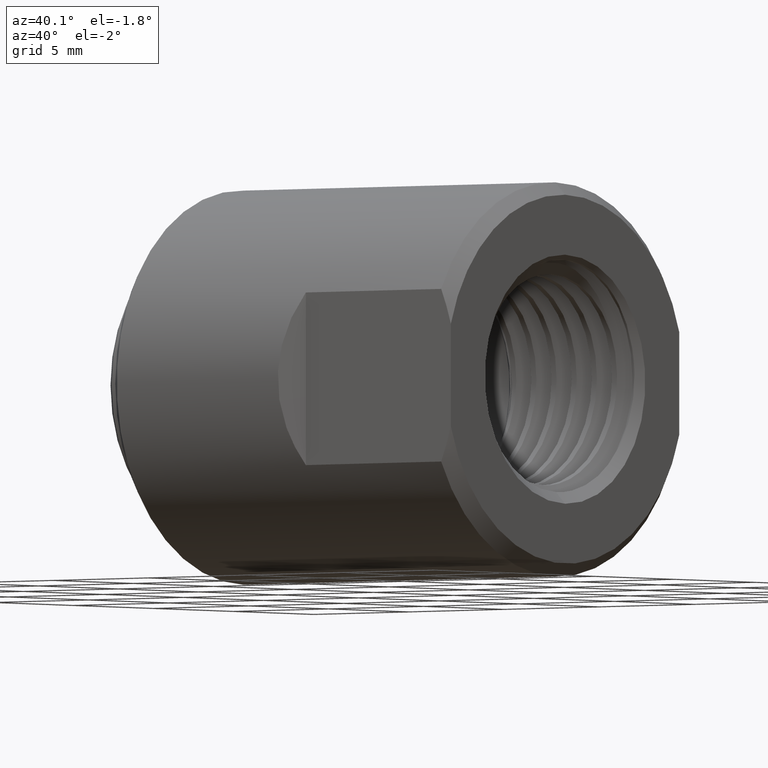
[diagram: clean part render]
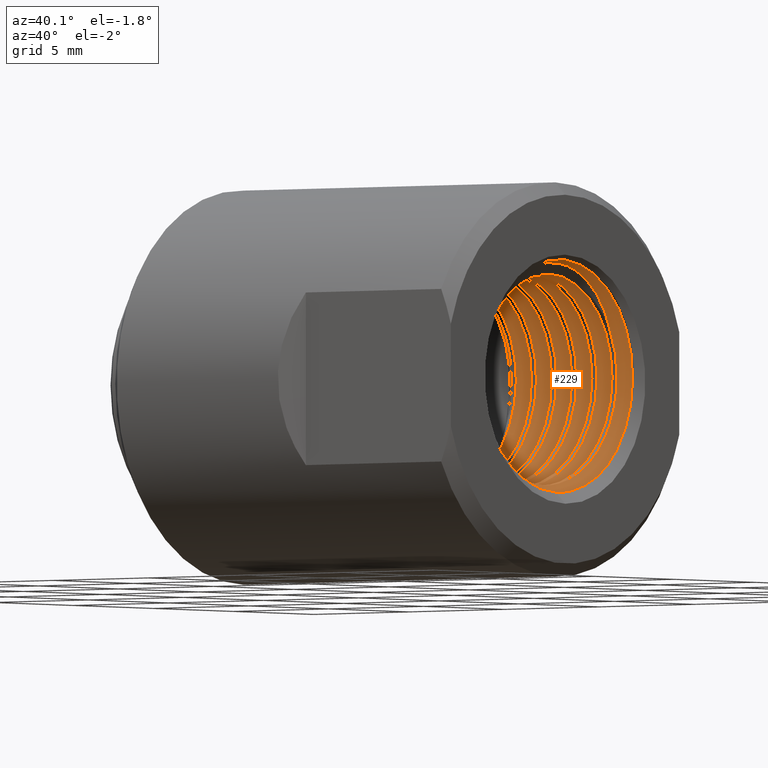
[diagram: same view with one face highlighted and labeled with its STEP entity id]
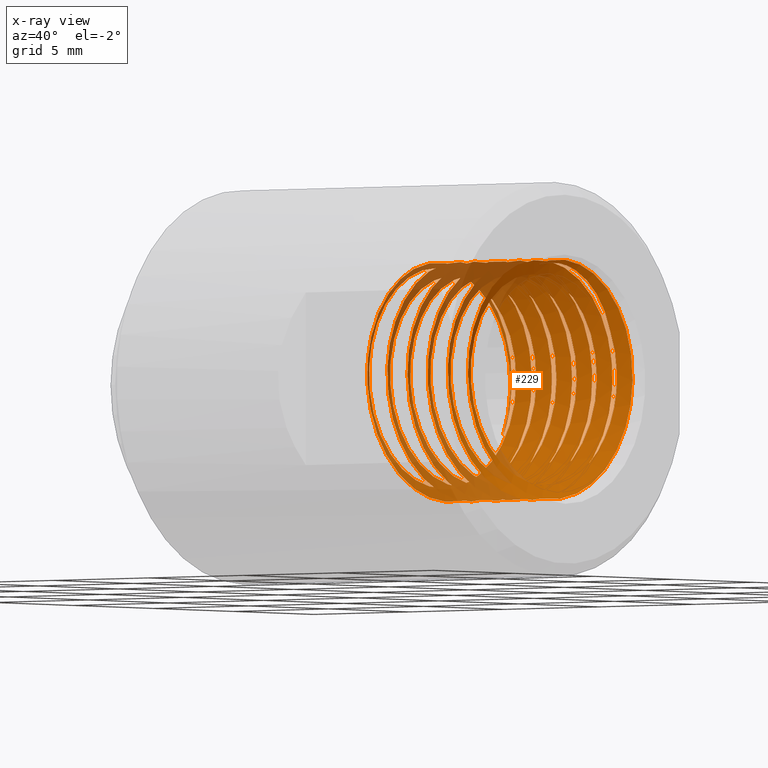
[diagram: x-ray of the same camera — body ghosted, the highlighted face saturated]
A machine part, auxiliary view. The second image highlights one B-rep face of the part: STEP entity #229.
The next image is the same camera in x-ray: the body ghosted, the highlighted face saturated — about 25% of this face is hidden behind the body in this view.
In plain terms, the highlighted face is a freeform B-spline surface patch.
Its self-contained STEP definition (entity closure, byte-faithful):
#10 = CARTESIAN_POINT ( 'NONE',  ( 0.2992500001137994303, 2.047456367324482387E-17, -0.1671875000000000999 ) ) ;
#52 = CARTESIAN_POINT ( 'NONE',  ( 0.4997708333902329270, 0.0000000000000000000, 0.1897402447916667623 ) ) ;
#68 = CARTESIAN_POINT ( 'NONE',  ( 0.2367500001137994303, 0.0000000000000000000, 0.1671875000000000999 ) ) ;
#82 = CARTESIAN_POINT ( 'NONE',  ( 0.3230624420322579238, 0.1755784089061325215, 0.06317381129562710251 ) ) ;
#112 = CARTESIAN_POINT ( 'NONE',  ( 0.5232083333902330935, 0.07859298272069940861, -0.1897402447916667623 ) ) ;
#114 = CARTESIAN_POINT ( 'NONE',  ( 0.4242500001137994303, 2.047456367324482387E-17, -0.1671875000000000999 ) ) ;
#128 = CARTESIAN_POINT ( 'NONE',  ( 0.2888333334471328007, -0.1671875000000000999, -3.071184550986722811E-17 ) ) ;
#153 = CARTESIAN_POINT ( 'NONE',  ( 0.3487291667804661155, 0.1671875000000000999, -0.06925132995925185886 ) ) ;
#173 = CARTESIAN_POINT ( 'NONE',  ( 0.5388333333902329825, 0.07859298272069938085, 0.1897402447916667623 ) ) ;
#188 = CARTESIAN_POINT ( 'NONE',  ( 0.2784166667804661155, 0.0000000000000000000, 0.1671875000000000999 ) ) ;
#202 = CARTESIAN_POINT ( 'NONE',  ( 0.4372708333902329825, 2.323647834535499307E-17, -0.1897402447916667623 ) ) ;
#229 = ADVANCED_FACE ( 'NONE', ( #11634 ), #6758, .T. ) ;
#233 = CARTESIAN_POINT ( 'NONE',  ( 0.5310208333902329825, 0.1897402447916667623, 1.161823917267749653E-17 ) ) ;
#235 = CARTESIAN_POINT ( 'NONE',  ( 0.4086250001137994303, -0.1182194149796260002, 0.1182194149796259586 ) ) ;
#237 = CARTESIAN_POINT ( 'NONE',  ( 0.3695625001137994303, -0.1671875000000000444, 0.06925132995925192825 ) ) ;
#264 = CARTESIAN_POINT ( 'NONE',  ( 0.3331041667235663528, 0.0000000000000000000, 0.1897402447916667623 ) ) ;
#291 = CARTESIAN_POINT ( 'NONE',  ( 0.4294583333902330380, -0.1897402447916667345, -0.07859298272069949187 ) ) ;
#292 = CARTESIAN_POINT ( 'NONE',  ( 0.4346666667804661155, 0.1671875000000000999, 1.023728183662241194E-17 ) ) ;
#304 = VERTEX_POINT ( 'NONE', #10035 ) ;
#326 = CARTESIAN_POINT ( 'NONE',  ( 0.4086250000568996676, 0.1897402447916667623, 0.07859298272069938085 ) ) ;
#355 = CARTESIAN_POINT ( 'NONE',  ( 0.3930000000568996121, -0.07859298272069935309, -0.1897402447916668455 ) ) ;
#380 = VERTEX_POINT ( 'NONE', #6422 ) ;
#385 = CARTESIAN_POINT ( 'NONE',  ( 0.5336250001137994303, -0.1182194149796260002, 0.1182194149796259586 ) ) ;
#419 = CARTESIAN_POINT ( 'NONE',  ( 0.3617500000568996676, 0.1897402447916667623, -0.07859298272069936697 ) ) ;
#455 = CARTESIAN_POINT ( 'NONE',  ( 0.5440416667804660600, -0.1182194149796259725, -0.1182194149796260002 ) ) ;
#473 = CARTESIAN_POINT ( 'NONE',  ( 0.4945625001137994858, -0.1671875000000000444, 0.06925132995925192825 ) ) ;
#489 = CARTESIAN_POINT ( 'NONE',  ( 0.4190416667235664083, -0.07859298272069950575, 0.1897402447916667345 ) ) ;
#490 = CARTESIAN_POINT ( 'NONE',  ( 0.4450833334471326896, 0.0000000000000000000, 0.1671875000000000999 ) ) ;
#520 = CARTESIAN_POINT ( 'NONE',  ( 0.3018541667235663528, -0.1897402447916667623, -3.485471751803248806E-17 ) ) ;
#540 = CARTESIAN_POINT ( 'NONE',  ( 0.4502916667804661155, -0.1182194149796260002, 0.1182194149796259586 ) ) ;
#559 = CARTESIAN_POINT ( 'NONE',  ( 0.3956041667235663528, 2.323647834535499307E-17, -0.1897402447916667623 ) ) ;
#588 = CARTESIAN_POINT ( 'NONE',  ( 0.6013333334471326896, 0.1671875000000000999, 1.023728183662241194E-17 ) ) ;
#604 = CARTESIAN_POINT ( 'NONE',  ( 0.3591458334471327452, 0.06925132995925187274, 0.1671875000000000999 ) ) ;
#606 = CARTESIAN_POINT ( 'NONE',  ( 0.3391358523092131150, -0.08798021306902083227, -0.1463319939339580156 ) ) ;
#616 = CARTESIAN_POINT ( 'NONE',  ( 0.5284166667804660600, 0.0000000000000000000, 0.1671875000000000999 ) ) ;
#621 = CARTESIAN_POINT ( 'NONE',  ( 0.5284166667235663528, 0.1897402447916667623, -0.07859298272069936697 ) ) ;
#625 = EDGE_CURVE ( 'NONE', #9468, #9767, #7239, .T. ) ;
#649 = VERTEX_POINT ( 'NONE', #1453 ) ;
#654 = CARTESIAN_POINT ( 'NONE',  ( 0.2784166667235663528, 0.1897402447916667623, -0.07859298272069936697 ) ) ;
#662 = CARTESIAN_POINT ( 'NONE',  ( 0.4034166667804661155, 0.0000000000000000000, 0.1671875000000000999 ) ) ;
#671 = CARTESIAN_POINT ( 'NONE',  ( 0.4659166667804660600, 2.047456367324482387E-17, -0.1671875000000000999 ) ) ;
#729 = CARTESIAN_POINT ( 'NONE',  ( 0.4398750001137994303, 0.1182194149796259863, 0.1182194149796259863 ) ) ;
#747 = CARTESIAN_POINT ( 'NONE',  ( 0.5805000000568997232, 0.07859298272069938085, 0.1897402447916667623 ) ) ;
#751 =( BOUNDED_CURVE ( )  B_SPLINE_CURVE ( 2, ( #616, #2654, #7352, #7417, #11248, #11313, #6402, #8498, #10473 ),
 .UNSPECIFIED., .F., .F. ) 
 B_SPLINE_CURVE_WITH_KNOTS ( ( 3, 2, 2, 2, 3 ),
 ( 0.2222222222222221544, 0.2361111111111110494, 0.2499999999999999722, 0.2638888888888888951, 0.2777777777777777901 ),
 .UNSPECIFIED. ) 
 CURVE ( )  GEOMETRIC_REPRESENTATION_ITEM ( )  RATIONAL_B_SPLINE_CURVE ( ( 1.000000000000000222, 0.9238795325112864054, 1.000000000000000000, 0.9238795325112867385, 1.000000000000000000, 0.9238795325112867385, 1.000000000000000000, 0.9238795325112867385, 1.000000000000000000 ) ) 
 REPRESENTATION_ITEM ( '' )  );
#808 = CARTESIAN_POINT ( 'NONE',  ( 0.4971666667235663528, 0.07859298272069938085, 0.1897402447916667623 ) ) ;
#810 = CARTESIAN_POINT ( 'NONE',  ( 0.5845696933046855559, -0.05742385723796969432, 0.1801833943573952768 ) ) ;
#857 = CARTESIAN_POINT ( 'NONE',  ( 0.3383043417122014729, -0.1158320986056485535, -0.1265852127559053686 ) ) ;
#902 = VERTEX_POINT ( 'NONE', #9046 ) ;
#905 = CARTESIAN_POINT ( 'NONE',  ( 0.3197597552083332184, 0.1716462196773733961, -0.08086368631263661511 ) ) ;
#951 = CARTESIAN_POINT ( 'NONE',  ( 0.5831041667235663528, 0.0000000000000000000, 0.1897402447916667623 ) ) ;
#965 = CARTESIAN_POINT ( 'NONE',  ( 0.5284166667804660600, 0.0000000000000000000, 0.1671875000000000999 ) ) ;
#969 = CARTESIAN_POINT ( 'NONE',  ( 0.3044583334471327452, 0.1182194149796259863, -0.1182194149796259725 ) ) ;
#982 = CARTESIAN_POINT ( 'NONE',  ( 0.3256976135724864441, 0.1032374188694688416, 0.1522674508890443923 ) ) ;
#1010 = CARTESIAN_POINT ( 'NONE',  ( 0.5023750000568997232, -0.07859298272069950575, 0.1897402447916667345 ) ) ;
#1026 = CARTESIAN_POINT ( 'NONE',  ( 0.5518541667804660600, 0.06925132995925169233, -0.1671875000000003220 ) ) ;
#1045 = CARTESIAN_POINT ( 'NONE',  ( 0.5726875000568996121, 0.1897402447916667623, 1.161823917267749653E-17 ) ) ;
#1072 = CARTESIAN_POINT ( 'NONE',  ( 0.5466458333902329825, -0.1341666137561830785, 0.1341666137561830230 ) ) ;
#1092 = CARTESIAN_POINT ( 'NONE',  ( 0.2914375001137994303, -0.1671875000000000444, -0.06925132995925196988 ) ) ;
#1106 = CARTESIAN_POINT ( 'NONE',  ( 0.3435208333902330380, -0.1897402447916667623, -3.485471751803248806E-17 ) ) ;
#1133 = CARTESIAN_POINT ( 'NONE',  ( 0.5752916667235663528, 0.1897402447916667623, 0.07859298272069938085 ) ) ;
#1168 = CARTESIAN_POINT ( 'NONE',  ( 0.4581041667235663528, 0.0000000000000000000, 0.1897402447916667623 ) ) ;
#1178 = CARTESIAN_POINT ( 'NONE',  ( 0.4971666667804660600, -0.1671875000000000999, -3.071184550986722811E-17 ) ) ;
#1196 = CARTESIAN_POINT ( 'NONE',  ( 0.5622708333902329825, 2.323647834535499307E-17, -0.1897402447916667623 ) ) ;
#1208 = CARTESIAN_POINT ( 'NONE',  ( 0.2653958334471327452, 0.1671875000000000999, -0.06925132995925185886 ) ) ;
#1224 = CARTESIAN_POINT ( 'NONE',  ( 0.3539375000568996676, 2.323647834535499307E-17, -0.1897402447916667623 ) ) ;
#1259 = CARTESIAN_POINT ( 'NONE',  ( 0.4164375000568996676, 0.0000000000000000000, 0.1897402447916667623 ) ) ;
#1275 = EDGE_CURVE ( 'NONE', #380, #1480, #6831, .T. ) ;
#1305 = CARTESIAN_POINT ( 'NONE',  ( 0.3324960459210342112, -0.1512423767299674593, 0.09267706996523208951 ) ) ;
#1319 = CARTESIAN_POINT ( 'NONE',  ( 0.3461250000568996676, -0.1897402447916667345, -0.07859298272069949187 ) ) ;
#1354 = CARTESIAN_POINT ( 'NONE',  ( 0.2497708333902330102, 0.0000000000000000000, 0.1897402447916667623 ) ) ;
#1358 = CARTESIAN_POINT ( 'NONE',  ( 0.3461250000568996676, -0.1897402447916667068, -0.07859298272069949187 ) ) ;
#1386 = CARTESIAN_POINT ( 'NONE',  ( 0.3226875000568997232, 0.1897402447916667623, 1.161823917267749653E-17 ) ) ;
#1418 = CARTESIAN_POINT ( 'NONE',  ( 0.5258125001137993193, 0.06925132995925187274, 0.1671875000000000999 ) ) ;
#1435 = CARTESIAN_POINT ( 'NONE',  ( 0.4190416667804660600, -0.1182194149796259725, -0.1182194149796260002 ) ) ;
#1452 = CARTESIAN_POINT ( 'NONE',  ( 0.4607083333902329825, -0.07859298272069950575, 0.1897402447916667345 ) ) ;
#1453 = CARTESIAN_POINT ( 'NONE',  ( 0.3414275771982433483, -7.773545401003312226E-13, -0.1680724228017568822 ) ) ;
#1480 = VERTEX_POINT ( 'NONE', #5197 ) ;
#1488 = CARTESIAN_POINT ( 'NONE',  ( 0.5101875001137995413, 0.06925132995925188661, -0.1671875000000000999 ) ) ;
#1502 = ORIENTED_EDGE ( 'NONE', *, *, #1275, .T. ) ;
#1505 = CARTESIAN_POINT ( 'NONE',  ( 0.3617500001137994303, 0.0000000000000000000, 0.1671875000000000999 ) ) ;
#1521 = CARTESIAN_POINT ( 'NONE',  ( 0.4685208333902329825, -0.1897402447916667623, -3.485471751803248806E-17 ) ) ;
#1552 = CARTESIAN_POINT ( 'NONE',  ( 0.5492500001137994303, 2.047456367324482387E-17, -0.1671875000000000999 ) ) ;
#1571 = CARTESIAN_POINT ( 'NONE',  ( 0.4476875001137993193, -0.06925132995925198376, 0.1671875000000000444 ) ) ;
#1577 = EDGE_CURVE ( 'NONE', #7659, #4426, #5223, .T. ) ;
#1591 = CARTESIAN_POINT ( 'NONE',  ( 0.3122708333902330380, 2.323647834535499307E-17, -0.1897402447916667623 ) ) ;
#1601 = CARTESIAN_POINT ( 'NONE',  ( 0.3282197731104276039, 4.491773429308312274E-13, 0.1812802268895724878 ) ) ;
#1618 = CARTESIAN_POINT ( 'NONE',  ( 0.5883125001137993193, -0.06925132995925184498, -0.1671875000000001554 ) ) ;
#1633 = CARTESIAN_POINT ( 'NONE',  ( 0.4685208334471328562, 0.06925132995925188661, -0.1671875000000000999 ) ) ;
#1636 = CARTESIAN_POINT ( 'NONE',  ( 0.3377633605802493055, -0.1321510300874113586, -0.1102837989247716505 ) ) ;
#1650 = CARTESIAN_POINT ( 'NONE',  ( 0.4711250000568997232, -0.1897402447916667068, -0.07859298272069949187 ) ) ;
#1652 = CARTESIAN_POINT ( 'NONE',  ( 0.5835945519666787540, -0.04611905185602636903, 0.1823912826715101687 ) ) ;
#1668 = CARTESIAN_POINT ( 'NONE',  ( 0.4763333334471327452, 0.1671875000000000999, 1.023728183662241194E-17 ) ) ;
#1695 = CARTESIAN_POINT ( 'NONE',  ( 0.4971666667804660600, -0.1671875000000000999, -3.071184550986722811E-17 ) ) ;
#1697 = CARTESIAN_POINT ( 'NONE',  ( 0.3400096928366833637, -0.05643538748237449804, -0.1602275471964027254 ) ) ;
#1711 = CARTESIAN_POINT ( 'NONE',  ( 0.4659166667235663528, -0.1897402447916667068, 0.07859298272069942248 ) ) ;
#1770 = CARTESIAN_POINT ( 'NONE',  ( 0.5622708333902329825, 2.323647834535499307E-17, -0.1897402447916667623 ) ) ;
#1855 = CARTESIAN_POINT ( 'NONE',  ( 0.5336250001137994303, -0.1182194149796260002, 0.1182194149796259586 ) ) ;
#1922 = CARTESIAN_POINT ( 'NONE',  ( 0.2419583334471327452, -0.1182194149796260002, 0.1182194149796259586 ) ) ;
#1934 = CARTESIAN_POINT ( 'NONE',  ( 0.3243189531205751264, 0.1492403882543105187, 0.1107303359878256538 ) ) ;
#1943 = VERTEX_POINT ( 'NONE', #1601 ) ;
#1946 = CARTESIAN_POINT ( 'NONE',  ( 0.3513333334471328007, 0.1671875000000000999, 1.023728183662241194E-17 ) ) ;
#1969 = CARTESIAN_POINT ( 'NONE',  ( 0.5101875000568997232, -0.1897402447916667623, -3.485471751803248806E-17 ) ) ;
#1985 = CARTESIAN_POINT ( 'NONE',  ( 0.5492500001137994303, 2.047456367324482387E-17, -0.1671875000000000999 ) ) ;
#2010 = CARTESIAN_POINT ( 'NONE',  ( 0.3565416667804661155, 0.1182194149796259863, 0.1182194149796259863 ) ) ;
#2030 = CARTESIAN_POINT ( 'NONE',  ( 0.6247708333902329825, 0.0000000000000000000, 0.1897402447916667623 ) ) ;
#2045 = CARTESIAN_POINT ( 'NONE',  ( 0.2523750001137994303, -0.1182194149796259725, -0.1182194149796260002 ) ) ;
#2050 =( BOUNDED_CURVE ( )  B_SPLINE_CURVE ( 2, ( #4460, #7388, #6619, #8708, #11708, #1026, #11588 ),
 .UNSPECIFIED., .F., .F. ) 
 B_SPLINE_CURVE_WITH_KNOTS ( ( 3, 2, 2, 3 ),
 ( 0.1300686064411471776, 0.1388888888888888951, 0.1527777777777778179, 0.1666666666666667129 ),
 .UNSPECIFIED. ) 
 CURVE ( )  GEOMETRIC_REPRESENTATION_ITEM ( )  RATIONAL_B_SPLINE_CURVE ( ( 0.9647168379740369559, 0.9516589103220693957, 1.000000000000000000, 0.9238795325112867385, 1.000000000000000000, 0.9238795325112864054, 1.000000000000000222 ) ) 
 REPRESENTATION_ITEM ( '' )  );
#2060 = CARTESIAN_POINT ( 'NONE',  ( 0.3282197731104276039, 4.491773429308312274E-13, 0.1812802268895724878 ) ) ;
#2063 = CARTESIAN_POINT ( 'NONE',  ( 0.3930000000568996121, -0.07859298272069935309, -0.1897402447916668178 ) ) ;
#2092 = CARTESIAN_POINT ( 'NONE',  ( 0.4867500000568996676, 0.1897402447916667623, -0.07859298272069936697 ) ) ;
#2109 = CARTESIAN_POINT ( 'NONE',  ( 0.2601875001137994303, 0.06925132995925188661, -0.1671875000000000999 ) ) ;
#2115 = CARTESIAN_POINT ( 'NONE',  ( 0.5743562654470464324, 0.06057536870771674381, 0.1681373811197369728 ) ) ;
#2123 = CARTESIAN_POINT ( 'NONE',  ( 0.4008125000568996676, 0.1341666137561830785, -0.1341666137561830507 ) ) ;
#2131 = CARTESIAN_POINT ( 'NONE',  ( 0.5075833334471326896, 2.047456367324482387E-17, -0.1671875000000000999 ) ) ;
#2151 = CARTESIAN_POINT ( 'NONE',  ( 0.6091458333902329825, 0.1341666137561830785, -0.1341666137561830507 ) ) ;
#2169 = CARTESIAN_POINT ( 'NONE',  ( 0.3018541667804660600, 0.06925132995925188661, -0.1671875000000000999 ) ) ;
#2180 = EDGE_CURVE ( 'NONE', #649, #902, #2961, .T. ) ;
#2187 = CARTESIAN_POINT ( 'NONE',  ( 0.3617500000568996676, 0.1897402447916667623, -0.07859298272069936697 ) ) ;
#2201 = CARTESIAN_POINT ( 'NONE',  ( 0.3309061159937856100, -0.1061046024624428541, 0.1441137700249550957 ) ) ;
#2214 = CARTESIAN_POINT ( 'NONE',  ( 0.3747708333902329825, 0.0000000000000000000, 0.1897402447916667623 ) ) ;
#2244 = CARTESIAN_POINT ( 'NONE',  ( 0.4476875000568996121, 0.1897402447916667623, 1.161823917267749653E-17 ) ) ;
#2273 = CARTESIAN_POINT ( 'NONE',  ( 0.3851875000568996676, -0.1897402447916667623, -3.485471751803248806E-17 ) ) ;
#2300 = CARTESIAN_POINT ( 'NONE',  ( 0.2914375000568996676, 0.0000000000000000000, 0.1897402447916667623 ) ) ;
#2304 = CARTESIAN_POINT ( 'NONE',  ( 0.3487291667235664083, -0.1341666137561830507, -0.1341666137561830785 ) ) ;
#2333 = CARTESIAN_POINT ( 'NONE',  ( 0.4711250000568997232, -0.1897402447916667345, -0.07859298272069949187 ) ) ;
#2367 = CARTESIAN_POINT ( 'NONE',  ( 0.5700833334471328007, 0.0000000000000000000, 0.1671875000000000999 ) ) ;
#2371 = CARTESIAN_POINT ( 'NONE',  ( 0.4242500001137994303, 2.047456367324482387E-17, -0.1671875000000000999 ) ) ;
#2382 = ORIENTED_EDGE ( 'NONE', *, *, #625, .T. ) ;
#2383 = VERTEX_POINT ( 'NONE', #5300 ) ;
#2402 = CARTESIAN_POINT ( 'NONE',  ( 0.4502916667235663528, 0.1897402447916667623, 0.07859298272069938085 ) ) ;
#2434 = CARTESIAN_POINT ( 'NONE',  ( 0.2862291667235663528, 0.1341666137561830785, 0.1341666137561830785 ) ) ;
#2450 = CARTESIAN_POINT ( 'NONE',  ( 0.4450833334471326896, 0.0000000000000000000, 0.1671875000000000999 ) ) ;
#2467 = CARTESIAN_POINT ( 'NONE',  ( 0.4008125000568996676, 0.1341666137561830785, -0.1341666137561830507 ) ) ;
#2500 = CARTESIAN_POINT ( 'NONE',  ( 0.2653958333902330380, -0.1341666137561830507, -0.1341666137561830785 ) ) ;
#2510 = CARTESIAN_POINT ( 'NONE',  ( 0.3825833334471327452, 2.047456367324482387E-17, -0.1671875000000000999 ) ) ;
#2519 = CARTESIAN_POINT ( 'NONE',  ( 0.3825833334471327452, 2.047456367324482387E-17, -0.1671875000000000999 ) ) ;
#2534 = CARTESIAN_POINT ( 'NONE',  ( 0.3148750000568996676, 0.07859298272069940861, -0.1897402447916667623 ) ) ;
#2563 = CARTESIAN_POINT ( 'NONE',  ( 0.6039375001137993193, 0.1671875000000000999, 0.06925132995925187274 ) ) ;
#2582 = CARTESIAN_POINT ( 'NONE',  ( 0.3539375001137994858, 0.1671875000000000999, 0.06925132995925187274 ) ) ;
#2599 = CARTESIAN_POINT ( 'NONE',  ( 0.5075833333902330935, -0.1897402447916667068, 0.07859298272069942248 ) ) ;
#2641 = CARTESIAN_POINT ( 'NONE',  ( 0.3435208334471327452, 0.06925132995925188661, -0.1671875000000000999 ) ) ;
#2654 = CARTESIAN_POINT ( 'NONE',  ( 0.5258125001137993193, 0.06925132995925166457, 0.1671875000000003220 ) ) ;
#2657 = CARTESIAN_POINT ( 'NONE',  ( 0.4997708333902329270, 0.0000000000000000000, 0.1897402447916667623 ) ) ;
#2748 = CARTESIAN_POINT ( 'NONE',  ( 0.3643541667804661710, -0.06925132995925198376, 0.1671875000000000444 ) ) ;
#2777 = CARTESIAN_POINT ( 'NONE',  ( 0.4685208333902329825, -0.1897402447916667623, -3.485471751803248806E-17 ) ) ;
#2801 = ORIENTED_EDGE ( 'NONE', *, *, #5330, .T. ) ;
#2865 = CARTESIAN_POINT ( 'NONE',  ( 0.4528958334471326896, -0.1671875000000000444, 0.06925132995925192825 ) ) ;
#2894 = VERTEX_POINT ( 'NONE', #7428 ) ;
#2926 = CARTESIAN_POINT ( 'NONE',  ( 0.2706041667804660600, 0.1671875000000000999, 0.06925132995925187274 ) ) ;
#2939 = CARTESIAN_POINT ( 'NONE',  ( 0.3216671011346718401, 0.1879768585913488832, 0.002480979268865109773 ) ) ;
#2961 = B_SPLINE_CURVE_WITH_KNOTS ( 'NONE', 3,
 ( #7547, #8561, #7725, #9573 ),
 .UNSPECIFIED., .F., .F.,
 ( 4, 4 ),
 ( 0.02337696867100745590, 0.02428863470461290613 ),
 .UNSPECIFIED. ) ;
#2971 = CARTESIAN_POINT ( 'NONE',  ( 0.5206041667235663528, 2.323647834535499307E-17, -0.1897402447916667623 ) ) ;
#3001 = CARTESIAN_POINT ( 'NONE',  ( 0.3280487237605644313, 0.007779569181302351671, 0.1814512762394162870 ) ) ;
#3004 = CARTESIAN_POINT ( 'NONE',  ( 0.4138333333902329825, 0.07859298272069938085, 0.1897402447916667623 ) ) ;
#3011 = CARTESIAN_POINT ( 'NONE',  ( 0.3423125000000170615, 0.03553627839858312237, -0.1633671725709557876 ) ) ;
#3030 = CARTESIAN_POINT ( 'NONE',  ( 0.5075833333902329825, -0.1897402447916667345, 0.07859298272069940861 ) ) ;
#3047 = CARTESIAN_POINT ( 'NONE',  ( 0.4659166667804660600, 2.047456367324482387E-17, -0.1671875000000000999 ) ) ;
#3059 = CARTESIAN_POINT ( 'NONE',  ( 0.3273358591565801445, 0.03873357067273563992, 0.1781665021604925681 ) ) ;
#3062 = CARTESIAN_POINT ( 'NONE',  ( 0.4424791667235662973, 0.1341666137561830785, -0.1341666137561830507 ) ) ;
#3112 = CARTESIAN_POINT ( 'NONE',  ( 0.5797593468793911242, 1.097259490757719929E-14, 0.1839468468793911404 ) ) ;
#3121 = CARTESIAN_POINT ( 'NONE',  ( 0.4034166667235663528, 0.1897402447916667623, -0.07859298272069936697 ) ) ;
#3128 = CARTESIAN_POINT ( 'NONE',  ( 0.3461250001137994303, 0.1182194149796259863, -0.1182194149796259725 ) ) ;
#3172 = CARTESIAN_POINT ( 'NONE',  ( 0.4502916667804661155, -0.1182194149796260002, 0.1182194149796259586 ) ) ;
#3213 = CARTESIAN_POINT ( 'NONE',  ( 0.3487291667235664083, -0.1341666137561830507, -0.1341666137561830785 ) ) ;
#3242 = CARTESIAN_POINT ( 'NONE',  ( 0.4320625000568997232, -0.1341666137561830507, -0.1341666137561830785 ) ) ;
#3278 = CARTESIAN_POINT ( 'NONE',  ( 0.3903958333902329825, -0.1341666137561830507, -0.1341666137561830785 ) ) ;
#3294 = CARTESIAN_POINT ( 'NONE',  ( 0.5629999999999987237, 0.1467163028966146920, 0.08016225184336354948 ) ) ;
#3308 = CARTESIAN_POINT ( 'NONE',  ( 0.2732083333902330380, 0.07859298272069940861, -0.1897402447916667623 ) ) ;
#3334 =( BOUNDED_CURVE ( )  B_SPLINE_CURVE ( 2, ( #114, #8694, #6790, #4053, #3868, #6011, #235, #4115, #7866 ),
 .UNSPECIFIED., .F., .F. ) 
 B_SPLINE_CURVE_WITH_KNOTS ( ( 3, 2, 2, 2, 3 ),
 ( 0.5000000000000000000, 0.5138888888888888395, 0.5277777777777776791, 0.5416666666666665186, 0.5555555555555554692 ),
 .UNSPECIFIED. ) 
 CURVE ( )  GEOMETRIC_REPRESENTATION_ITEM ( )  RATIONAL_B_SPLINE_CURVE ( ( 1.000000000000000000, 0.9238795325112867385, 1.000000000000000000, 0.9238795325112867385, 1.000000000000000000, 0.9238795325112867385, 1.000000000000000000, 0.9238795325112872936, 0.9999999999999994449 ) ) 
 REPRESENTATION_ITEM ( '' )  );
#3344 = CARTESIAN_POINT ( 'NONE',  ( 0.3539375000568996676, 2.323647834535499307E-17, -0.1897402447916667623 ) ) ;
#3366 = CARTESIAN_POINT ( 'NONE',  ( 0.5797593468793911242, 1.097259490757719929E-14, 0.1839468468793911404 ) ) ;
#3367 = CARTESIAN_POINT ( 'NONE',  ( 0.5722145865913493834, 0.08135213734692238463, 0.1567181233783619398 ) ) ;
#3369 = VERTEX_POINT ( 'NONE', #6771 ) ;
#3377 = CARTESIAN_POINT ( 'NONE',  ( 0.5388333334471328007, -0.1671875000000000999, -3.071184550986722811E-17 ) ) ;
#3395 = CARTESIAN_POINT ( 'NONE',  ( 0.3799791667804661710, -0.06925132995925184498, -0.1671875000000001554 ) ) ;
#3411 = CARTESIAN_POINT ( 'NONE',  ( 0.4086250000568996676, 0.1897402447916667623, 0.07859298272069938085 ) ) ;
#3412 = CARTESIAN_POINT ( 'NONE',  ( 0.4242500001137994303, 2.047456367324482387E-17, -0.1671875000000000999 ) ) ;
#3443 = CARTESIAN_POINT ( 'NONE',  ( 0.5049791667804660600, -0.06925132995925184498, -0.1671875000000001554 ) ) ;
#3450 = CARTESIAN_POINT ( 'NONE',  ( 0.3956041667804661155, 0.1671875000000000999, 0.06925132995925188661 ) ) ;
#3458 = CARTESIAN_POINT ( 'NONE',  ( 0.3982083334471327452, 0.1182194149796259863, 0.1182194149796259863 ) ) ;
#3460 = CARTESIAN_POINT ( 'NONE',  ( 0.3303623088267031993, -0.08711980393776760923, 0.1569447104264362625 ) ) ;
#3476 = CARTESIAN_POINT ( 'NONE',  ( 0.4424791667235662973, 0.1341666137561830785, -0.1341666137561830507 ) ) ;
#3506 = B_SPLINE_CURVE_WITH_KNOTS ( 'NONE', 3,
 ( #10212, #12118, #11169, #5361, #8294, #12184, #3460, #2201, #6057, #10007, #6120, #1305, #9041, #11302, #9549, #12310, #10461, #5672, #3533, #4543, #7342, #11422, #8540, #9490, #1636, #857, #10400, #606, #10341, #1697, #7524, #12371, #6516, #12251 ),
 .UNSPECIFIED., .F., .F.,
 ( 4, 2, 2, 2, 2, 2, 2, 2, 2, 2, 2, 2, 2, 2, 2, 2, 4 ),
 ( 0.009458350977478185984, 0.01032826458332376449, 0.01119817818916934299, 0.01206809179501492323, 0.01293800540086050346, 0.01380791900670608197, 0.01467783261255166220, 0.01554774621839724071, 0.01641765982424282094, 0.01728757343008839945, 0.01815748703593397795, 0.01902740064177955992, 0.01989731424762513495, 0.02076722785347071693, 0.02163714145931629196, 0.02250705506516187393, 0.02337696867100745590 ),
 .UNSPECIFIED. ) ;
#3513 = CARTESIAN_POINT ( 'NONE',  ( 0.5805000001137994303, -0.1671875000000000999, -3.071184550986722811E-17 ) ) ;
#3530 = CARTESIAN_POINT ( 'NONE',  ( 0.4372708334471327452, 0.1671875000000000999, 0.06925132995925187274 ) ) ;
#3531 = EDGE_CURVE ( 'NONE', #2383, #304, #7160, .T. ) ;
#3533 = CARTESIAN_POINT ( 'NONE',  ( 0.3352327724291778721, -0.1737423888816756468, -0.01768821035265482136 ) ) ;
#3544 = CARTESIAN_POINT ( 'NONE',  ( 0.5752916667235663528, 0.1897402447916667623, 0.07859298272069938085 ) ) ;
#3595 = CARTESIAN_POINT ( 'NONE',  ( 0.3643541667804661710, -0.06925132995925198376, 0.1671875000000000444 ) ) ;
#3645 = CARTESIAN_POINT ( 'NONE',  ( 0.3877916667804660600, 0.1182194149796259863, -0.1182194149796259725 ) ) ;
#3731 = CARTESIAN_POINT ( 'NONE',  ( 0.4919583333902329825, 0.1897402447916667623, 0.07859298272069938085 ) ) ;
#3759 = CARTESIAN_POINT ( 'NONE',  ( 0.5414375001137994303, -0.1671875000000000444, -0.06925132995925196988 ) ) ;
#3825 = CARTESIAN_POINT ( 'NONE',  ( 0.4216458334471326896, -0.06925132995925184498, -0.1671875000000001554 ) ) ;
#3828 = CARTESIAN_POINT ( 'NONE',  ( 0.3773750001137994858, -0.1182194149796259725, -0.1182194149796260002 ) ) ;
#3866 = CARTESIAN_POINT ( 'NONE',  ( 0.5544583333902329825, -0.1897402447916667345, -0.07859298272069949187 ) ) ;
#3868 = CARTESIAN_POINT ( 'NONE',  ( 0.4138333334471327452, -0.1671875000000000999, -3.071184550986722811E-17 ) ) ;
#3871 = CARTESIAN_POINT ( 'NONE',  ( 0.4867500001137994303, 0.0000000000000000000, 0.1671875000000000999 ) ) ;
#3945 = CARTESIAN_POINT ( 'NONE',  ( 0.3331041667804660600, -0.1671875000000000444, -0.06925132995925196988 ) ) ;
#3958 = CARTESIAN_POINT ( 'NONE',  ( 0.3267919805918255149, 0.06131502854047438805, 0.1728061305362509348 ) ) ;
#3961 = CARTESIAN_POINT ( 'NONE',  ( 0.5153958333902329825, -0.1341666137561830507, -0.1341666137561830785 ) ) ;
#3992 = CARTESIAN_POINT ( 'NONE',  ( 0.6143541667235663528, 0.1897402447916667623, 1.161823917267749653E-17 ) ) ;
#4007 = CARTESIAN_POINT ( 'NONE',  ( 0.3096666667804660600, 0.1671875000000000999, 1.023728183662241194E-17 ) ) ;
#4020 = CARTESIAN_POINT ( 'NONE',  ( 0.3197597552083332184, 0.1716462196773733961, -0.08086368631263661511 ) ) ;
#4052 = EDGE_CURVE ( 'NONE', #4127, #2894, #12038, .T. ) ;
#4053 = CARTESIAN_POINT ( 'NONE',  ( 0.4164375001137995413, -0.1671875000000000444, -0.06925132995925196988 ) ) ;
#4056 = CARTESIAN_POINT ( 'NONE',  ( 0.4659166667804660600, 2.047456367324482387E-17, -0.1671875000000000999 ) ) ;
#4065 = CARTESIAN_POINT ( 'NONE',  ( 0.2680000001137994303, 0.1671875000000000999, 1.023728183662241194E-17 ) ) ;
#4072 = CARTESIAN_POINT ( 'NONE',  ( 0.5791218312518665590, 0.007883504478701492887, 0.1833093312518662144 ) ) ;
#4082 = CARTESIAN_POINT ( 'NONE',  ( 0.4294583333902330380, -0.1897402447916667068, -0.07859298272069949187 ) ) ;
#4090 = CARTESIAN_POINT ( 'NONE',  ( 0.3591458334471327452, 0.06925132995925187274, 0.1671875000000000999 ) ) ;
#4113 = CARTESIAN_POINT ( 'NONE',  ( 0.5336250000568997232, 0.1897402447916667623, 0.07859298272069938085 ) ) ;
#4115 = CARTESIAN_POINT ( 'NONE',  ( 0.4060208334471328562, -0.06925132995925241397, 0.1671874999999996836 ) ) ;
#4127 = VERTEX_POINT ( 'NONE', #4757 ) ;
#4128 = CARTESIAN_POINT ( 'NONE',  ( 0.2393541667804661155, -0.06925132995925198376, 0.1671875000000000444 ) ) ;
#4139 = VERTEX_POINT ( 'NONE', #6922 ) ;
#4144 = CARTESIAN_POINT ( 'NONE',  ( 0.3226875000568997232, 0.1897402447916667623, 1.161823917267749653E-17 ) ) ;
#4171 = CARTESIAN_POINT ( 'NONE',  ( 0.4216458333902330380, -0.1341666137561830785, 0.1341666137561830230 ) ) ;
#4172 = CARTESIAN_POINT ( 'NONE',  ( 0.4398750001137994303, 0.1182194149796259863, 0.1182194149796259863 ) ) ;
#4208 = CARTESIAN_POINT ( 'NONE',  ( 0.4555000000568997232, 0.07859298272069938085, 0.1897402447916667623 ) ) ;
#4234 = CARTESIAN_POINT ( 'NONE',  ( 0.3331041667235663528, 0.0000000000000000000, 0.1897402447916667623 ) ) ;
#4235 = CARTESIAN_POINT ( 'NONE',  ( 0.4320625001137994303, 0.1671875000000000999, -0.06925132995925185886 ) ) ;
#4262 = CARTESIAN_POINT ( 'NONE',  ( 0.5310208334471326896, -0.06925132995925198376, 0.1671875000000000444 ) ) ;
#4266 = CARTESIAN_POINT ( 'NONE',  ( 0.3877916667235662973, -0.1897402447916667068, -0.07859298272069949187 ) ) ;
#4298 = CARTESIAN_POINT ( 'NONE',  ( 0.3435208333902330380, -0.1897402447916667623, -3.485471751803248806E-17 ) ) ;
#4329 = CARTESIAN_POINT ( 'NONE',  ( 0.5206041667804661710, 0.1671875000000000999, 0.06925132995925187274 ) ) ;
#4346 = CARTESIAN_POINT ( 'NONE',  ( 0.4242500001137994303, 2.047456367324482387E-17, -0.1671875000000000999 ) ) ;
#4363 = CARTESIAN_POINT ( 'NONE',  ( 0.4112291667235663528, 0.1341666137561830785, 0.1341666137561830785 ) ) ;
#4376 = VERTEX_POINT ( 'NONE', #6032 ) ;
#4396 = CARTESIAN_POINT ( 'NONE',  ( 0.2549791667235663528, -0.1341666137561830785, 0.1341666137561830230 ) ) ;
#4413 = CARTESIAN_POINT ( 'NONE',  ( 0.4346666667804661155, 0.1671875000000000999, 1.023728183662241194E-17 ) ) ;
#4426 = VERTEX_POINT ( 'NONE', #3366 ) ;
#4432 = CARTESIAN_POINT ( 'NONE',  ( 0.3799791667235663528, -0.1341666137561830785, 0.1341666137561830230 ) ) ;
#4460 = CARTESIAN_POINT ( 'NONE',  ( 0.5629999999999987237, 0.1467163028966146920, 0.08016225184336354948 ) ) ;
#4461 = CARTESIAN_POINT ( 'NONE',  ( 0.2706041667235662973, 2.323647834535499307E-17, -0.1897402447916667623 ) ) ;
#4475 = CARTESIAN_POINT ( 'NONE',  ( 0.4164375001137994858, -0.1671875000000000444, -0.06925132995925196988 ) ) ;
#4493 = CARTESIAN_POINT ( 'NONE',  ( 0.5206041667235663528, 2.323647834535499307E-17, -0.1897402447916667623 ) ) ;
#4525 = CARTESIAN_POINT ( 'NONE',  ( 0.5622708334471328007, 0.1671875000000000999, 0.06925132995925187274 ) ) ;
#4533 = CARTESIAN_POINT ( 'NONE',  ( 0.3930000001137993748, 0.1671875000000000999, 1.023728183662241194E-17 ) ) ;
#4541 = CARTESIAN_POINT ( 'NONE',  ( 0.4268541667804660600, 0.06925132995925188661, -0.1671875000000000999 ) ) ;
#4543 = CARTESIAN_POINT ( 'NONE',  ( 0.3357843116644455561, -0.1694081724885605211, -0.04010280965907560280 ) ) ;
#4603 = CARTESIAN_POINT ( 'NONE',  ( 0.4034166667804661155, 0.0000000000000000000, 0.1671875000000000999 ) ) ;
#4619 = CARTESIAN_POINT ( 'NONE',  ( 0.5570625000568996121, -0.1341666137561830507, -0.1341666137561830785 ) ) ;
#4621 = CARTESIAN_POINT ( 'NONE',  ( 0.5806941577334757687, -0.01155985082830148815, 0.1848816577334765066 ) ) ;
#4671 = CARTESIAN_POINT ( 'NONE',  ( 0.5855527447916667461, -0.06858350623662502754, 0.1769114557226085238 ) ) ;
#4757 = CARTESIAN_POINT ( 'NONE',  ( 0.5492500001137994303, 2.047456367324482387E-17, -0.1671875000000000999 ) ) ;
#4770 = ORIENTED_EDGE ( 'NONE', *, *, #9455, .T. ) ;
#4806 = CARTESIAN_POINT ( 'NONE',  ( 0.5518541667235662418, -0.1897402447916667623, -3.485471751803248806E-17 ) ) ;
#4864 = CARTESIAN_POINT ( 'NONE',  ( 0.5805000000568997232, 0.07859298272069938085, 0.1897402447916667623 ) ) ;
#4882 = CARTESIAN_POINT ( 'NONE',  ( 0.2966458334471328007, -0.06925132995925184498, -0.1671875000000001554 ) ) ;
#4927 = CARTESIAN_POINT ( 'NONE',  ( 0.5258125000568996121, 0.1341666137561830785, -0.1341666137561830507 ) ) ;
#4956 =( BOUNDED_CURVE ( )  B_SPLINE_CURVE ( 2, ( #3047, #11830, #8001, #7173, #7050, #11889, #3172, #10942, #9977 ),
 .UNSPECIFIED., .F., .F. ) 
 B_SPLINE_CURVE_WITH_KNOTS ( ( 3, 2, 2, 2, 3 ),
 ( 0.3888888888888888395, 0.4027777777777777901, 0.4166666666666667407, 0.4305555555555556357, 0.4444444444444445308 ),
 .UNSPECIFIED. ) 
 CURVE ( )  GEOMETRIC_REPRESENTATION_ITEM ( )  RATIONAL_B_SPLINE_CURVE ( ( 1.000000000000000222, 0.9238795325112864054, 1.000000000000000000, 0.9238795325112867385, 1.000000000000000000, 0.9238795325112867385, 1.000000000000000000, 0.9238795325112861834, 1.000000000000000666 ) ) 
 REPRESENTATION_ITEM ( '' )  );
#4960 = CARTESIAN_POINT ( 'NONE',  ( 0.3305000000568996676, 0.07859298272069938085, 0.1897402447916667623 ) ) ;
#4990 = CARTESIAN_POINT ( 'NONE',  ( 0.6117500000568996121, 0.1897402447916667623, -0.07859298272069936697 ) ) ;
#5006 = CARTESIAN_POINT ( 'NONE',  ( 0.3070625001137993748, 0.1671875000000000999, -0.06925132995925185886 ) ) ;
#5021 = CARTESIAN_POINT ( 'NONE',  ( 0.3851875000568996676, -0.1897402447916667623, -3.485471751803248806E-17 ) ) ;
#5028 = CARTESIAN_POINT ( 'NONE',  ( 0.3442789246955833549, 0.08350628421486679109, -0.1529325457443851677 ) ) ;
#5029 = CARTESIAN_POINT ( 'NONE',  ( 0.4893541667804661155, -0.06925132995925219193, 0.1671874999999998501 ) ) ;
#5048 = CARTESIAN_POINT ( 'NONE',  ( 0.5570625000568996121, -0.1341666137561830507, -0.1341666137561830785 ) ) ;
#5049 = CARTESIAN_POINT ( 'NONE',  ( 0.4424791667804660600, 0.06925132995925230295, 0.1671874999999997113 ) ) ;
#5062 = CARTESIAN_POINT ( 'NONE',  ( 0.2627916667804661155, 0.1182194149796259863, -0.1182194149796259725 ) ) ;
#5081 = CARTESIAN_POINT ( 'NONE',  ( 0.3513333333902330380, -0.07859298272069935309, -0.1897402447916668178 ) ) ;
#5089 = CARTESIAN_POINT ( 'NONE',  ( 0.4867500001137994303, 0.0000000000000000000, 0.1671875000000000999 ) ) ;
#5103 =( BOUNDED_CURVE ( )  B_SPLINE_CURVE ( 2, ( #4671, #10294, #10474, #747, #6407, #3544, #1045, #8374, #5505, #9441, #1770, #5446, #4619, #8786, #8436, #7539, #9318, #9502, #8553, #12323, #7481, #9382, #12448, #621, #5629, #8499, #4493, #7419, #3961, #11316, #12262, #2599, #11378, #11439, #2657, #808, #6652, #3731, #5858, #6531, #7597, #6471, #11494, #10354, #10417, #1650, #2777, #1711, #9741, #12385, #1168, #4208, #8965, #5983, #2244, #11844, #3062, #8902, #202, #5143, #3242, #4082, #10773, #7124, #8078, #11784, #6942, #3004, #10956, #326, #10836, #3121, #2123, #11967, #11020, #2063, #9870, #4266, #5021, #6883, #7956, #9931, #6102, #7064, #7001, #9807, #5921, #2187, #10898, #6042, #1224, #5081, #2304, #1358, #1106, #9991, #6168, #7894, #264, #4960, #5210, #11906, #4144, #10054, #9091 ),
 .UNSPECIFIED., .F., .F. ) 
 B_SPLINE_CURVE_WITH_KNOTS ( ( 3, 2, 2, 2, 2, 2, 2, 2, 2, 2, 2, 2, 2, 2, 2, 2, 2, 2, 2, 2, 2, 2, 2, 2, 2, 2, 2, 2, 2, 2, 2, 2, 2, 2, 2, 2, 2, 2, 2, 2, 2, 2, 2, 2, 2, 2, 2, 2, 2, 2, 2, 2, 3 ),
 ( 0.1045658304666293170, 0.1111111111111111049, 0.1250000000000000000, 0.1388888888888888951, 0.1527777777777777901, 0.1666666666666666574, 0.1805555555555555525, 0.1944444444444444198, 0.2083333333333333703, 0.2222222222222222099, 0.2361111111111111049, 0.2500000000000000000, 0.2638888888888888951, 0.2777777777777777901, 0.2916666666666666852, 0.3055555555555555802, 0.3194444444444444198, 0.3333333333333333148, 0.3472222222222222099, 0.3611111111111111049, 0.3750000000000000000, 0.3888888888888888951, 0.4027777777777777901, 0.4166666666666666852, 0.4305555555555555802, 0.4444444444444444198, 0.4583333333333333148, 0.4722222222222222099, 0.4861111111111111049, 0.4999999999999999445, 0.5138888888888888395, 0.5277777777777777901, 0.5416666666666666297, 0.5555555555555555802, 0.5694444444444444198, 0.5833333333333333703, 0.5972222222222220989, 0.6111111111111111605, 0.6250000000000000000, 0.6388888888888888395, 0.6527777777777776791, 0.6666666666666665186, 0.6805555555555555802, 0.6944444444444444198, 0.7083333333333332593, 0.7222222222222220989, 0.7361111111111111605, 0.7500000000000000000, 0.7638888888888888395, 0.7777777777777776791, 0.7916666666666665186, 0.8055555555555555802, 0.8133305036292362011 ),
 .UNSPECIFIED. ) 
 CURVE ( )  GEOMETRIC_REPRESENTATION_ITEM ( )  RATIONAL_B_SPLINE_CURVE ( ( 0.9620655135739630825, 0.9641274527797998317, 1.000000000000000000, 0.9238795325112867385, 1.000000000000000000, 0.9238795325112867385, 1.000000000000000000, 0.9238795325112867385, 1.000000000000000000, 0.9238795325112867385, 1.000000000000000000, 0.9238795325112867385, 1.000000000000000000, 0.9238795325112867385, 1.000000000000000000, 0.9238795325112867385, 1.000000000000000000, 0.9238795325112867385, 1.000000000000000000, 0.9238795325112867385, 1.000000000000000000, 0.9238795325112867385, 1.000000000000000000, 0.9238795325112867385, 1.000000000000000000, 0.9238795325112867385, 1.000000000000000000, 0.9238795325112867385, 1.000000000000000000, 0.9238795325112867385, 1.000000000000000000, 0.9238795325112867385, 1.000000000000000000, 0.9238795325112867385, 1.000000000000000000, 0.9238795325112867385, 1.000000000000000000, 0.9238795325112867385, 1.000000000000000000, 0.9238795325112867385, 1.000000000000000000, 0.9238795325112867385, 1.000000000000000000, 0.9238795325112867385, 1.000000000000000000, 0.9238795325112867385, 1.000000000000000000, 0.9238795325112867385, 1.000000000000000000, 0.9238795325112867385, 1.000000000000000000, 0.9238795325112867385, 1.000000000000000000, 0.9238795325112867385, 1.000000000000000000, 0.9238795325112867385, 1.000000000000000000, 0.9238795325112867385, 1.000000000000000000, 0.9238795325112867385, 1.000000000000000000, 0.9238795325112867385, 1.000000000000000000, 0.9238795325112867385, 1.000000000000000000, 0.9238795325112867385, 1.000000000000000000, 0.9238795325112867385, 1.000000000000000000, 0.9238795325112867385, 1.000000000000000000, 0.9238795325112867385, 1.000000000000000000, 0.9238795325112867385, 1.000000000000000000, 0.9238795325112867385, 1.000000000000000000, 0.9238795325112867385, 1.000000000000000000, 0.9238795325112867385, 1.000000000000000000, 0.9238795325112867385, 1.000000000000000000, 0.9238795325112867385, 1.000000000000000000, 0.9238795325112867385, 1.000000000000000000, 0.9238795325112867385, 1.000000000000000000, 0.9238795325112867385, 1.000000000000000000, 0.9238795325112867385, 1.000000000000000000, 0.9238795325112867385, 1.000000000000000000, 0.9238795325112867385, 1.000000000000000000, 0.9238795325112867385, 1.000000000000000000, 0.9238795325112867385, 1.000000000000000000, 0.9238795325112867385, 1.000000000000000000, 0.9573880468910301866, 0.9624841178566700961 ) ) 
 REPRESENTATION_ITEM ( '' )  );
#5114 = CARTESIAN_POINT ( 'NONE',  ( 0.4138333333902329825, 0.07859298272069938085, 0.1897402447916667623 ) ) ;
#5143 = CARTESIAN_POINT ( 'NONE',  ( 0.4346666667235663528, -0.07859298272069935309, -0.1897402447916668178 ) ) ;
#5173 = CARTESIAN_POINT ( 'NONE',  ( 0.3409166667235662973, -0.1897402447916667345, 0.07859298272069940861 ) ) ;
#5197 = CARTESIAN_POINT ( 'NONE',  ( 0.3825833334471327452, 2.047456367324482387E-17, -0.1671875000000000999 ) ) ;
#5206 = CARTESIAN_POINT ( 'NONE',  ( 0.5414375001137994303, -0.1671875000000000444, -0.06925132995925196988 ) ) ;
#5210 = CARTESIAN_POINT ( 'NONE',  ( 0.3278958333902330380, 0.1341666137561830785, 0.1341666137561830785 ) ) ;
#5223 = B_SPLINE_CURVE_WITH_KNOTS ( 'NONE', 3,
 ( #6033, #8126, #12022, #11957, #6226, #5262, #12090, #3367, #10827, #2115, #5973, #9857, #6991, #4072, #3112 ),
 .UNSPECIFIED., .F., .F.,
 ( 4, 2, 2, 2, 2, 1, 2, 4 ),
 ( 5.785531982005281265E-16, 0.001196614276114711314, 0.001794921414171777490, 0.002393228552228844098, 0.002991535690285911792, 0.003589842828342979918, 0.004188149966400047178, 0.004786457104457115738 ),
 .UNSPECIFIED. ) ;
#5240 = CARTESIAN_POINT ( 'NONE',  ( 0.3200833333902329825, 0.1897402447916667623, -0.07859298272069936697 ) ) ;
#5262 = CARTESIAN_POINT ( 'NONE',  ( 0.5700893996345253179, 0.1002693752371407732, 0.1427573858452798883 ) ) ;
#5272 = CARTESIAN_POINT ( 'NONE',  ( 0.5232083334471326896, 0.1182194149796259863, 0.1182194149796259863 ) ) ;
#5292 = CARTESIAN_POINT ( 'NONE',  ( 0.3409166667804660600, 2.047456367324482387E-17, -0.1671875000000000999 ) ) ;
#5300 = CARTESIAN_POINT ( 'NONE',  ( 0.5075833334471326896, 2.047456367324482387E-17, -0.1671875000000000999 ) ) ;
#5311 = CARTESIAN_POINT ( 'NONE',  ( 0.4737291667235663528, -0.1341666137561830507, -0.1341666137561830785 ) ) ;
#5330 = EDGE_CURVE ( 'NONE', #4139, #902, #9757, .T. ) ;
#5342 = CARTESIAN_POINT ( 'NONE',  ( 0.2992500000568997232, -0.1897402447916667345, 0.07859298272069940861 ) ) ;
#5355 = ORIENTED_EDGE ( 'NONE', *, *, #12291, .F. ) ;
#5359 = CARTESIAN_POINT ( 'NONE',  ( 0.4711250001137993748, 0.1182194149796259863, -0.1182194149796259725 ) ) ;
#5361 = CARTESIAN_POINT ( 'NONE',  ( 0.3292646046473165500, -0.04504901141515334217, 0.1748869267642597092 ) ) ;
#5376 = CARTESIAN_POINT ( 'NONE',  ( 0.4268541667235662973, -0.1897402447916667623, -3.485471751803248806E-17 ) ) ;
#5409 = CARTESIAN_POINT ( 'NONE',  ( 0.2523750000568997232, -0.07859298272069950575, 0.1897402447916667345 ) ) ;
#5421 = CARTESIAN_POINT ( 'NONE',  ( 0.3903958334471328562, 0.1671875000000000999, -0.06925132995925185886 ) ) ;
#5430 = CARTESIAN_POINT ( 'NONE',  ( 0.4060208334471328007, -0.06925132995925198376, 0.1671875000000000444 ) ) ;
#5440 = ORIENTED_EDGE ( 'NONE', *, *, #1577, .F. ) ;
#5446 = CARTESIAN_POINT ( 'NONE',  ( 0.5596666667235663528, -0.07859298272069935309, -0.1897402447916668178 ) ) ;
#5473 = CARTESIAN_POINT ( 'NONE',  ( 0.2888333333902329825, 0.07859298272069938085, 0.1897402447916667623 ) ) ;
#5488 = CARTESIAN_POINT ( 'NONE',  ( 0.4424791667804661710, 0.06925132995925187274, 0.1671875000000000999 ) ) ;
#5505 = CARTESIAN_POINT ( 'NONE',  ( 0.5674791667235663528, 0.1341666137561830785, -0.1341666137561830507 ) ) ;
#5554 = CARTESIAN_POINT ( 'NONE',  ( 0.4789375001137993748, 0.1671875000000000999, 0.06925132995925187274 ) ) ;
#5606 = CARTESIAN_POINT ( 'NONE',  ( 0.3851875001137994303, 0.06925132995925233070, -0.1671874999999997113 ) ) ;
#5611 = ORIENTED_EDGE ( 'NONE', *, *, #7281, .F. ) ;
#5629 = CARTESIAN_POINT ( 'NONE',  ( 0.5258125000568996121, 0.1341666137561830785, -0.1341666137561830507 ) ) ;
#5672 = CARTESIAN_POINT ( 'NONE',  ( 0.3349649139022346511, -0.1748012263755447937, -0.006091868193118654164 ) ) ;
#5762 = CARTESIAN_POINT ( 'NONE',  ( 0.5674791667235663528, 0.1341666137561830785, -0.1341666137561830507 ) ) ;
#5777 = CARTESIAN_POINT ( 'NONE',  ( 0.5466458334471326896, -0.06925132995925205315, -0.1671874999999999056 ) ) ;
#5780 = CARTESIAN_POINT ( 'NONE',  ( 0.2758125001137993748, 0.06925132995925187274, 0.1671875000000000999 ) ) ;
#5792 = ORIENTED_EDGE ( 'NONE', *, *, #6664, .T. ) ;
#5827 = CARTESIAN_POINT ( 'NONE',  ( 0.5909166667235662418, -0.1897402447916667345, 0.07859298272069940861 ) ) ;
#5858 = CARTESIAN_POINT ( 'NONE',  ( 0.4893541667235663528, 0.1897402447916667623, 1.161823917267749653E-17 ) ) ;
#5885 = CARTESIAN_POINT ( 'NONE',  ( 0.5726875000568996121, 0.1897402447916667623, 1.161823917267749653E-17 ) ) ;
#5888 = EDGE_CURVE ( 'NONE', #2894, #2383, #751, .T. ) ;
#5891 = CARTESIAN_POINT ( 'NONE',  ( 0.4685208334471328007, 0.06925132995925209478, -0.1671874999999998779 ) ) ;
#5917 = ORIENTED_EDGE ( 'NONE', *, *, #7601, .T. ) ;
#5919 = CARTESIAN_POINT ( 'NONE',  ( 0.3236014723521575820, 0.1658595097734311130, 0.08431637436046357514 ) ) ;
#5921 = CARTESIAN_POINT ( 'NONE',  ( 0.3643541667235662973, 0.1897402447916667623, 1.161823917267749653E-17 ) ) ;
#5933 =( BOUNDED_CURVE ( )  B_SPLINE_CURVE ( 2, ( #3871, #7737, #11638, #6488, #1668, #7497, #11394, #5891, #4056 ),
 .UNSPECIFIED., .F., .F. ) 
 B_SPLINE_CURVE_WITH_KNOTS ( ( 3, 2, 2, 2, 3 ),
 ( 0.3333333333333332593, 0.3472222222222221544, 0.3611111111111110494, 0.3749999999999999445, 0.3888888888888888395 ),
 .UNSPECIFIED. ) 
 CURVE ( )  GEOMETRIC_REPRESENTATION_ITEM ( )  RATIONAL_B_SPLINE_CURVE ( ( 1.000000000000000222, 0.9238795325112864054, 1.000000000000000000, 0.9238795325112867385, 1.000000000000000000, 0.9238795325112867385, 1.000000000000000000, 0.9238795325112870716, 0.9999999999999996669 ) ) 
 REPRESENTATION_ITEM ( '' )  );
#5951 = CARTESIAN_POINT ( 'NONE',  ( 0.5935208333902329825, -0.1897402447916667623, -3.485471751803248806E-17 ) ) ;
#5955 = CARTESIAN_POINT ( 'NONE',  ( 0.3799791667804662265, -0.06925132995925140089, -0.1671875000000005440 ) ) ;
#5973 = CARTESIAN_POINT ( 'NONE',  ( 0.5757570982679902638, 0.04622535910999455572, 0.1744265644930937387 ) ) ;
#5983 = CARTESIAN_POINT ( 'NONE',  ( 0.4502916667235663528, 0.1897402447916667623, 0.07859298272069938085 ) ) ;
#5990 = CARTESIAN_POINT ( 'NONE',  ( 0.5023750001137994303, -0.1182194149796259725, -0.1182194149796260002 ) ) ;
#6011 = CARTESIAN_POINT ( 'NONE',  ( 0.4112291667804660600, -0.1671875000000000444, 0.06925132995925192825 ) ) ;
#6025 = CARTESIAN_POINT ( 'NONE',  ( 0.2810208334471327452, -0.06925132995925198376, 0.1671875000000000444 ) ) ;
#6032 = CARTESIAN_POINT ( 'NONE',  ( 0.5855527447916667461, -0.06858350623662502754, 0.1769114557226085238 ) ) ;
#6033 = CARTESIAN_POINT ( 'NONE',  ( 0.5629999999999987237, 0.1467163028966146920, 0.08016225184336354948 ) ) ;
#6042 = CARTESIAN_POINT ( 'NONE',  ( 0.3565416667235663528, 0.07859298272069940861, -0.1897402447916667623 ) ) ;
#6057 = CARTESIAN_POINT ( 'NONE',  ( 0.3311757991959659586, -0.1150395216840746221, 0.1367295917927081605 ) ) ;
#6070 = CARTESIAN_POINT ( 'NONE',  ( 0.3721666667235663528, 0.07859298272069938085, 0.1897402447916667623 ) ) ;
#6102 = CARTESIAN_POINT ( 'NONE',  ( 0.3747708333902329825, 0.0000000000000000000, 0.1897402447916667623 ) ) ;
#6120 = CARTESIAN_POINT ( 'NONE',  ( 0.3319487366577820731, -0.1383909178103391868, 0.1118271033279089749 ) ) ;
#6134 = CARTESIAN_POINT ( 'NONE',  ( 0.4476875000568996121, 0.1897402447916667623, 1.161823917267749653E-17 ) ) ;
#6164 = CARTESIAN_POINT ( 'NONE',  ( 0.5987291667804661710, 0.1671875000000000999, -0.06925132995925185886 ) ) ;
#6168 = CARTESIAN_POINT ( 'NONE',  ( 0.3383125000568996121, -0.1341666137561830785, 0.1341666137561830230 ) ) ;
#6201 = CARTESIAN_POINT ( 'NONE',  ( 0.3565416667235663528, 0.07859298272069940861, -0.1897402447916667623 ) ) ;
#6226 = CARTESIAN_POINT ( 'NONE',  ( 0.5686887576672166045, 0.1117992177180434366, 0.1320920756906241444 ) ) ;
#6236 = CARTESIAN_POINT ( 'NONE',  ( 0.5570625001137994303, 0.1671875000000000999, -0.06925132995925185886 ) ) ;
#6268 = CARTESIAN_POINT ( 'NONE',  ( 0.4841458333902330380, 0.1341666137561830785, -0.1341666137561830507 ) ) ;
#6304 = CARTESIAN_POINT ( 'NONE',  ( 0.5752916667804660600, -0.1182194149796260002, 0.1182194149796259586 ) ) ;
#6322 = CARTESIAN_POINT ( 'NONE',  ( 0.4581041667804661710, -0.1671875000000000444, -0.06925132995925196988 ) ) ;
#6341 = CARTESIAN_POINT ( 'NONE',  ( 0.4581041667235663528, 0.0000000000000000000, 0.1897402447916667623 ) ) ;
#6342 = CARTESIAN_POINT ( 'NONE',  ( 0.4294583334471328007, 0.1182194149796259863, -0.1182194149796259725 ) ) ;
#6373 = CARTESIAN_POINT ( 'NONE',  ( 0.5831041667804660600, -0.1671875000000000444, -0.06925132995925196988 ) ) ;
#6389 = CARTESIAN_POINT ( 'NONE',  ( 0.3721666667804660600, -0.1671875000000000999, -3.071184550986722811E-17 ) ) ;
#6402 = CARTESIAN_POINT ( 'NONE',  ( 0.5127916667804660600, 0.1182194149796259863, -0.1182194149796259725 ) ) ;
#6406 = CARTESIAN_POINT ( 'NONE',  ( 0.3070625000568996676, -0.1341666137561830507, -0.1341666137561830785 ) ) ;
#6407 = CARTESIAN_POINT ( 'NONE',  ( 0.5778958333902329825, 0.1341666137561830785, 0.1341666137561830785 ) ) ;
#6422 = CARTESIAN_POINT ( 'NONE',  ( 0.4034166667804661155, 0.0000000000000000000, 0.1671875000000000999 ) ) ;
#6431 =( BOUNDED_CURVE ( )  B_SPLINE_CURVE ( 2, ( #11532, #5955, #3828, #7694, #6685, #237, #11760, #2748, #10568 ),
 .UNSPECIFIED., .F., .F. ) 
 B_SPLINE_CURVE_WITH_KNOTS ( ( 3, 2, 2, 2, 3 ),
 ( 0.6111111111111110494, 0.6249999999999998890, 0.6388888888888888395, 0.6527777777777777901, 0.6666666666666666297 ),
 .UNSPECIFIED. ) 
 CURVE ( )  GEOMETRIC_REPRESENTATION_ITEM ( )  RATIONAL_B_SPLINE_CURVE ( ( 1.000000000000000666, 0.9238795325112861834, 1.000000000000000000, 0.9238795325112867385, 1.000000000000000000, 0.9238795325112867385, 1.000000000000000000, 0.9238795325112867385, 1.000000000000000000 ) ) 
 REPRESENTATION_ITEM ( '' )  );
#6437 = CARTESIAN_POINT ( 'NONE',  ( 0.5674791667804660600, 0.06925132995925187274, 0.1671875000000000999 ) ) ;
#6455 = CARTESIAN_POINT ( 'NONE',  ( 0.3487291667804661155, 0.1671875000000000999, -0.06925132995925185886 ) ) ;
#6471 = CARTESIAN_POINT ( 'NONE',  ( 0.4815416667235663528, 0.07859298272069940861, -0.1897402447916667623 ) ) ;
#6488 = CARTESIAN_POINT ( 'NONE',  ( 0.4789375001137994303, 0.1671875000000000999, 0.06925132995925188661 ) ) ;
#6512 = CARTESIAN_POINT ( 'NONE',  ( 0.3383125001137994858, -0.06925132995925184498, -0.1671875000000001554 ) ) ;
#6516 = CARTESIAN_POINT ( 'NONE',  ( 0.3411576875014001309, -0.01138063380757230354, -0.1683423124985476138 ) ) ;
#6531 = CARTESIAN_POINT ( 'NONE',  ( 0.4867500000568996676, 0.1897402447916667623, -0.07859298272069936697 ) ) ;
#6560 = ORIENTED_EDGE ( 'NONE', *, *, #5888, .T. ) ;
#6568 = CARTESIAN_POINT ( 'NONE',  ( 0.4008125001137993193, 0.06925132995925144253, 0.1671875000000004885 ) ) ;
#6619 = CARTESIAN_POINT ( 'NONE',  ( 0.5596666667804660600, 0.1671875000000000999, 1.023728183662241194E-17 ) ) ;
#6652 = CARTESIAN_POINT ( 'NONE',  ( 0.4945625000568996676, 0.1341666137561830785, 0.1341666137561830785 ) ) ;
#6664 = EDGE_CURVE ( 'NONE', #7659, #4127, #2050, .T. ) ;
#6679 = CARTESIAN_POINT ( 'NONE',  ( 0.5310208334471326896, -0.06925132995925219193, 0.1671874999999998501 ) ) ;
#6685 = CARTESIAN_POINT ( 'NONE',  ( 0.3721666667804660600, -0.1671875000000000999, -3.071184550986722811E-17 ) ) ;
#6720 = ORIENTED_EDGE ( 'NONE', *, *, #9629, .F. ) ;
#6758 =( BOUNDED_SURFACE ( )  B_SPLINE_SURFACE ( 1, 2, ( 
 ( #2030, #11814, #10679, #9833, #3992, #4990, #2151, #11754, #7920, #9900, #11870, #8873, #5951, #5827, #9644, #6788, #951, #4864, #6851, #1133, #5885, #10743, #5762, #6970, #1196, #9708, #5048, #3866, #4806, #8751, #1072, #9771, #7864, #173, #8930, #4113, #233, #8692, #4927, #112, #2971, #8810, #7984, #12589, #1969, #3030, #7733, #1010, #52, #7795, #11694, #6909, #10802, #2092, #6268, #11120, #12136, #12199, #5311, #2333, #1521, #8243, #10152, #1452, #6341, #10927, #10021, #2402, #6134, #10088, #3476, #9188, #9254, #7091, #8104, #291, #5376, #10983, #4171, #489, #1259, #5114, #4363, #3411, #7290, #11183, #2467, #10225, #559, #355, #3278, #12069, #2273, #9119, #4432, #8309, #2214, #6070, #9958, #8996, #8044, #419, #11935, #6201, #3344, #7223, #3213, #1319, #4298, #5173, #8174, #9056, #4234, #11998, #7156, #11049, #1386, #5240, #10292, #2534, #1591, #7357, #6406, #11252, #520, #5342, #8136, #7119, #2300, #5473, #2434, #8339, #12099, #654, #8206, #3308, #4461, #7185, #2500, #9219, #10254, #7389, #4396, #5409, #1354 ),
 ( #8277, #11217, #9285, #2563, #588, #6164, #11283, #11080, #12230, #1618, #9347, #6373, #3513, #11016, #6304, #12032, #2367, #6437, #10049, #4525, #9151, #6236, #10321, #8405, #1552, #12290, #455, #5206, #3377, #9087, #385, #4262, #10120, #1418, #5272, #4329, #7259, #11153, #10189, #1488, #12167, #3443, #7320, #10398, #1695, #473, #9236, #9365, #7405, #9426, #10273, #5554, #7339, #11591, #5359, #1633, #671, #11362, #7274, #6322, #9169, #2865, #540, #1571, #2450, #5488, #729, #3530, #4413, #10137, #10209, #4541, #4346, #3825, #1435, #4475, #12181, #8292, #11300, #5430, #4603, #8224, #3458, #8484, #8421, #11235, #12308, #12116, #2519, #3395, #10338, #11167, #6389, #9300, #12369, #3595, #1505, #604, #8357, #2582, #12248, #6455, #7467, #2641, #5292, #6512, #7691, #3945, #9662, #10879, #8769, #11710, #7878, #8826, #9850, #6984, #4007, #5006, #969, #2169, #10, #4882, #11828, #1092, #128, #10819, #8887, #6025, #188, #5780, #9913, #2926, #4065, #1208, #5062, #2109, #7940, #10632, #2045, #7751, #11652, #8948, #1922, #4128, #68 ) ),
 .UNSPECIFIED., .F., .F., .F. ) 
 B_SPLINE_SURFACE_WITH_KNOTS ( ( 2, 2 ),
 ( 3, 2, 2, 2, 2, 2, 2, 2, 2, 2, 2, 2, 2, 2, 2, 2, 2, 2, 2, 2, 2, 2, 2, 2, 2, 2, 2, 2, 2, 2, 2, 2, 2, 2, 2, 2, 2, 2, 2, 2, 2, 2, 2, 2, 2, 2, 2, 2, 2, 2, 2, 2, 2, 2, 2, 2, 2, 2, 2, 2, 2, 2, 2, 2, 2, 2, 2, 2, 2, 2, 2, 2, 3 ),
 ( 0.0000000000000000000, 1.000000000000000000 ),
 ( 0.0000000000000000000, 0.01388888888888888812, 0.02777777777777777624, 0.04166666666666666435, 0.05555555555555555247, 0.06944444444444444753, 0.08333333333333332871, 0.09722222222222222376, 0.1111111111111111049, 0.1250000000000000000, 0.1388888888888888951, 0.1527777777777777901, 0.1666666666666666574, 0.1805555555555555525, 0.1944444444444444475, 0.2083333333333333426, 0.2222222222222222099, 0.2361111111111111049, 0.2500000000000000000, 0.2638888888888888951, 0.2777777777777777901, 0.2916666666666666852, 0.3055555555555555802, 0.3194444444444444198, 0.3333333333333333148, 0.3472222222222222099, 0.3611111111111111049, 0.3750000000000000000, 0.3888888888888888951, 0.4027777777777777901, 0.4166666666666666852, 0.4305555555555555802, 0.4444444444444444198, 0.4583333333333333148, 0.4722222222222222099, 0.4861111111111111049, 0.5000000000000000000, 0.5138888888888888395, 0.5277777777777777901, 0.5416666666666666297, 0.5555555555555555802, 0.5694444444444444198, 0.5833333333333333703, 0.5972222222222222099, 0.6111111111111111605, 0.6250000000000000000, 0.6388888888888888395, 0.6527777777777777901, 0.6666666666666666297, 0.6805555555555555802, 0.6944444444444444198, 0.7083333333333333703, 0.7222222222222222099, 0.7361111111111111605, 0.7500000000000000000, 0.7638888888888888395, 0.7777777777777777901, 0.7916666666666666297, 0.8055555555555555802, 0.8194444444444444198, 0.8333333333333333703, 0.8472222222222222099, 0.8611111111111111605, 0.8750000000000000000, 0.8888888888888888395, 0.9027777777777777901, 0.9166666666666666297, 0.9305555555555555802, 0.9444444444444444198, 0.9583333333333333703, 0.9722222222222222099, 0.9861111111111111605, 1.000000000000000000 ),
 .UNSPECIFIED. ) 
 GEOMETRIC_REPRESENTATION_ITEM ( )  RATIONAL_B_SPLINE_SURFACE ( (
 ( 1.000000000000000000, 0.9238795325112867385, 1.000000000000000000, 0.9238795325112867385, 1.000000000000000000, 0.9238795325112867385, 1.000000000000000000, 0.9238795325112867385, 1.000000000000000000, 0.9238795325112867385, 1.000000000000000000, 0.9238795325112867385, 1.000000000000000000, 0.9238795325112867385, 1.000000000000000000, 0.9238795325112867385, 1.000000000000000000, 0.9238795325112867385, 1.000000000000000000, 0.9238795325112867385, 1.000000000000000000, 0.9238795325112867385, 1.000000000000000000, 0.9238795325112867385, 1.000000000000000000, 0.9238795325112867385, 1.000000000000000000, 0.9238795325112867385, 1.000000000000000000, 0.9238795325112867385, 1.000000000000000000, 0.9238795325112867385, 1.000000000000000000, 0.9238795325112867385, 1.000000000000000000, 0.9238795325112867385, 1.000000000000000000, 0.9238795325112867385, 1.000000000000000000, 0.9238795325112867385, 1.000000000000000000, 0.9238795325112867385, 1.000000000000000000, 0.9238795325112867385, 1.000000000000000000, 0.9238795325112867385, 1.000000000000000000, 0.9238795325112867385, 1.000000000000000000, 0.9238795325112867385, 1.000000000000000000, 0.9238795325112867385, 1.000000000000000000, 0.9238795325112867385, 1.000000000000000000, 0.9238795325112867385, 1.000000000000000000, 0.9238795325112867385, 1.000000000000000000, 0.9238795325112867385, 1.000000000000000000, 0.9238795325112867385, 1.000000000000000000, 0.9238795325112867385, 1.000000000000000000, 0.9238795325112867385, 1.000000000000000000, 0.9238795325112867385, 1.000000000000000000, 0.9238795325112867385, 1.000000000000000000, 0.9238795325112867385, 1.000000000000000000, 0.9238795325112867385, 1.000000000000000000, 0.9238795325112867385, 1.000000000000000000, 0.9238795325112867385, 1.000000000000000000, 0.9238795325112867385, 1.000000000000000000, 0.9238795325112867385, 1.000000000000000000, 0.9238795325112867385, 1.000000000000000000, 0.9238795325112867385, 1.000000000000000000, 0.9238795325112867385, 1.000000000000000000, 0.9238795325112867385, 1.000000000000000000, 0.9238795325112867385, 1.000000000000000000, 0.9238795325112867385, 1.000000000000000000, 0.9238795325112867385, 1.000000000000000000, 0.9238795325112867385, 1.000000000000000000, 0.9238795325112867385, 1.000000000000000000, 0.9238795325112867385, 1.000000000000000000, 0.9238795325112867385, 1.000000000000000000, 0.9238795325112867385, 1.000000000000000000, 0.9238795325112867385, 1.000000000000000000, 0.9238795325112867385, 1.000000000000000000, 0.9238795325112867385, 1.000000000000000000, 0.9238795325112867385, 1.000000000000000000, 0.9238795325112867385, 1.000000000000000000, 0.9238795325112867385, 1.000000000000000000, 0.9238795325112867385, 1.000000000000000000, 0.9238795325112867385, 1.000000000000000000, 0.9238795325112867385, 1.000000000000000000, 0.9238795325112867385, 1.000000000000000000, 0.9238795325112867385, 1.000000000000000000, 0.9238795325112867385, 1.000000000000000000, 0.9238795325112867385, 1.000000000000000000, 0.9238795325112867385, 1.000000000000000000, 0.9238795325112867385, 1.000000000000000000, 0.9238795325112867385, 1.000000000000000000, 0.9238795325112867385, 1.000000000000000000, 0.9238795325112867385, 1.000000000000000000, 0.9238795325112867385, 1.000000000000000000),
 ( 1.000000000000000000, 0.9238795325112867385, 1.000000000000000000, 0.9238795325112867385, 1.000000000000000000, 0.9238795325112867385, 1.000000000000000000, 0.9238795325112867385, 1.000000000000000000, 0.9238795325112867385, 1.000000000000000000, 0.9238795325112867385, 1.000000000000000000, 0.9238795325112867385, 1.000000000000000000, 0.9238795325112867385, 1.000000000000000000, 0.9238795325112867385, 1.000000000000000000, 0.9238795325112867385, 1.000000000000000000, 0.9238795325112867385, 1.000000000000000000, 0.9238795325112867385, 1.000000000000000000, 0.9238795325112867385, 1.000000000000000000, 0.9238795325112867385, 1.000000000000000000, 0.9238795325112867385, 1.000000000000000000, 0.9238795325112867385, 1.000000000000000000, 0.9238795325112867385, 1.000000000000000000, 0.9238795325112867385, 1.000000000000000000, 0.9238795325112867385, 1.000000000000000000, 0.9238795325112867385, 1.000000000000000000, 0.9238795325112867385, 1.000000000000000000, 0.9238795325112867385, 1.000000000000000000, 0.9238795325112867385, 1.000000000000000000, 0.9238795325112867385, 1.000000000000000000, 0.9238795325112867385, 1.000000000000000000, 0.9238795325112867385, 1.000000000000000000, 0.9238795325112867385, 1.000000000000000000, 0.9238795325112867385, 1.000000000000000000, 0.9238795325112867385, 1.000000000000000000, 0.9238795325112867385, 1.000000000000000000, 0.9238795325112867385, 1.000000000000000000, 0.9238795325112867385, 1.000000000000000000, 0.9238795325112867385, 1.000000000000000000, 0.9238795325112867385, 1.000000000000000000, 0.9238795325112867385, 1.000000000000000000, 0.9238795325112867385, 1.000000000000000000, 0.9238795325112867385, 1.000000000000000000, 0.9238795325112867385, 1.000000000000000000, 0.9238795325112867385, 1.000000000000000000, 0.9238795325112867385, 1.000000000000000000, 0.9238795325112867385, 1.000000000000000000, 0.9238795325112867385, 1.000000000000000000, 0.9238795325112867385, 1.000000000000000000, 0.9238795325112867385, 1.000000000000000000, 0.9238795325112867385, 1.000000000000000000, 0.9238795325112867385, 1.000000000000000000, 0.9238795325112867385, 1.000000000000000000, 0.9238795325112867385, 1.000000000000000000, 0.9238795325112867385, 1.000000000000000000, 0.9238795325112867385, 1.000000000000000000, 0.9238795325112867385, 1.000000000000000000, 0.9238795325112867385, 1.000000000000000000, 0.9238795325112867385, 1.000000000000000000, 0.9238795325112867385, 1.000000000000000000, 0.9238795325112867385, 1.000000000000000000, 0.9238795325112867385, 1.000000000000000000, 0.9238795325112867385, 1.000000000000000000, 0.9238795325112867385, 1.000000000000000000, 0.9238795325112867385, 1.000000000000000000, 0.9238795325112867385, 1.000000000000000000, 0.9238795325112867385, 1.000000000000000000, 0.9238795325112867385, 1.000000000000000000, 0.9238795325112867385, 1.000000000000000000, 0.9238795325112867385, 1.000000000000000000, 0.9238795325112867385, 1.000000000000000000, 0.9238795325112867385, 1.000000000000000000, 0.9238795325112867385, 1.000000000000000000, 0.9238795325112867385, 1.000000000000000000, 0.9238795325112867385, 1.000000000000000000, 0.9238795325112867385, 1.000000000000000000, 0.9238795325112867385, 1.000000000000000000, 0.9238795325112867385, 1.000000000000000000) ) ) 
 REPRESENTATION_ITEM ( '' )  SURFACE ( )  );
#6759 = CARTESIAN_POINT ( 'NONE',  ( 0.3211665901185212224, 0.1873414875959371617, -0.02081094031234226316 ) ) ;
#6771 = CARTESIAN_POINT ( 'NONE',  ( 0.4659166667804660600, 2.047456367324482387E-17, -0.1671875000000000999 ) ) ;
#6788 = CARTESIAN_POINT ( 'NONE',  ( 0.5857083333902329825, -0.07859298272069950575, 0.1897402447916667345 ) ) ;
#6790 = CARTESIAN_POINT ( 'NONE',  ( 0.4190416667804660600, -0.1182194149796259725, -0.1182194149796260002 ) ) ;
#6818 = CARTESIAN_POINT ( 'NONE',  ( 0.3221721314289470173, 0.1862040158630520748, 0.02570645310527030353 ) ) ;
#6831 =( BOUNDED_CURVE ( )  B_SPLINE_CURVE ( 2, ( #662, #6568, #9356, #3450, #4533, #5421, #3645, #5606, #2510 ),
 .UNSPECIFIED., .F., .F. ) 
 B_SPLINE_CURVE_WITH_KNOTS ( ( 3, 2, 2, 2, 3 ),
 ( 0.5555555555555554692, 0.5694444444444443088, 0.5833333333333332593, 0.5972222222222220989, 0.6111111111111110494 ),
 .UNSPECIFIED. ) 
 CURVE ( )  GEOMETRIC_REPRESENTATION_ITEM ( )  RATIONAL_B_SPLINE_CURVE ( ( 1.000000000000000666, 0.9238795325112861834, 1.000000000000000000, 0.9238795325112867385, 1.000000000000000000, 0.9238795325112867385, 1.000000000000000000, 0.9238795325112872936, 0.9999999999999994449 ) ) 
 REPRESENTATION_ITEM ( '' )  );
#6851 = CARTESIAN_POINT ( 'NONE',  ( 0.5778958333902329825, 0.1341666137561830785, 0.1341666137561830785 ) ) ;
#6881 = CARTESIAN_POINT ( 'NONE',  ( 0.3246598124392675033, 0.1392583913324152156, 0.1225430916940386666 ) ) ;
#6883 = CARTESIAN_POINT ( 'NONE',  ( 0.3825833333902330380, -0.1897402447916667068, 0.07859298272069942248 ) ) ;
#6909 = CARTESIAN_POINT ( 'NONE',  ( 0.4919583333902329825, 0.1897402447916667623, 0.07859298272069938085 ) ) ;
#6922 = CARTESIAN_POINT ( 'NONE',  ( 0.3617500001137994303, 0.0000000000000000000, 0.1671875000000000999 ) ) ;
#6942 = CARTESIAN_POINT ( 'NONE',  ( 0.4164375000568996676, 0.0000000000000000000, 0.1897402447916667623 ) ) ;
#6970 = CARTESIAN_POINT ( 'NONE',  ( 0.5648750000568997232, 0.07859298272069940861, -0.1897402447916667623 ) ) ;
#6972 = CARTESIAN_POINT ( 'NONE',  ( 0.4450833334471326896, 0.0000000000000000000, 0.1671875000000000999 ) ) ;
#6984 = CARTESIAN_POINT ( 'NONE',  ( 0.3122708334471327452, 0.1671875000000000999, 0.06925132995925187274 ) ) ;
#6991 = CARTESIAN_POINT ( 'NONE',  ( 0.5784612510395699125, 0.01575744834756908144, 0.1821374180665940035 ) ) ;
#7001 = CARTESIAN_POINT ( 'NONE',  ( 0.3695625000568996676, 0.1341666137561830785, 0.1341666137561830785 ) ) ;
#7050 = CARTESIAN_POINT ( 'NONE',  ( 0.4555000001137994858, -0.1671875000000000999, -3.071184550986722811E-17 ) ) ;
#7064 = CARTESIAN_POINT ( 'NONE',  ( 0.3721666667235663528, 0.07859298272069938085, 0.1897402447916667623 ) ) ;
#7073 = ORIENTED_EDGE ( 'NONE', *, *, #2180, .F. ) ;
#7091 = CARTESIAN_POINT ( 'NONE',  ( 0.4346666667235663528, -0.07859298272069935309, -0.1897402447916668455 ) ) ;
#7119 = CARTESIAN_POINT ( 'NONE',  ( 0.2940416667235663528, -0.07859298272069950575, 0.1897402447916667345 ) ) ;
#7124 = CARTESIAN_POINT ( 'NONE',  ( 0.4242500000568996676, -0.1897402447916667068, 0.07859298272069942248 ) ) ;
#7156 = CARTESIAN_POINT ( 'NONE',  ( 0.3278958333902330380, 0.1341666137561830785, 0.1341666137561830785 ) ) ;
#7160 =( BOUNDED_CURVE ( )  B_SPLINE_CURVE ( 2, ( #2131, #8084, #5990, #9880, #1178, #8024, #11915, #5029, #5089 ),
 .UNSPECIFIED., .F., .F. ) 
 B_SPLINE_CURVE_WITH_KNOTS ( ( 3, 2, 2, 2, 3 ),
 ( 0.2777777777777777901, 0.2916666666666666852, 0.3055555555555555247, 0.3194444444444443643, 0.3333333333333332593 ),
 .UNSPECIFIED. ) 
 CURVE ( )  GEOMETRIC_REPRESENTATION_ITEM ( )  RATIONAL_B_SPLINE_CURVE ( ( 1.000000000000000000, 0.9238795325112867385, 1.000000000000000000, 0.9238795325112867385, 1.000000000000000000, 0.9238795325112867385, 1.000000000000000000, 0.9238795325112870716, 0.9999999999999996669 ) ) 
 REPRESENTATION_ITEM ( '' )  );
#7173 = CARTESIAN_POINT ( 'NONE',  ( 0.4581041667804661155, -0.1671875000000000444, -0.06925132995925196988 ) ) ;
#7185 = CARTESIAN_POINT ( 'NONE',  ( 0.2680000000568996676, -0.07859298272069935309, -0.1897402447916668455 ) ) ;
#7223 = CARTESIAN_POINT ( 'NONE',  ( 0.3513333333902330380, -0.07859298272069935309, -0.1897402447916668455 ) ) ;
#7239 =( BOUNDED_CURVE ( )  B_SPLINE_CURVE ( 2, ( #490, #5049, #4172, #9120, #292, #4235, #6342, #12070, #3412 ),
 .UNSPECIFIED., .F., .F. ) 
 B_SPLINE_CURVE_WITH_KNOTS ( ( 3, 2, 2, 2, 3 ),
 ( 0.4444444444444445308, 0.4583333333333333703, 0.4722222222222222654, 0.4861111111111111605, 0.5000000000000000000 ),
 .UNSPECIFIED. ) 
 CURVE ( )  GEOMETRIC_REPRESENTATION_ITEM ( )  RATIONAL_B_SPLINE_CURVE ( ( 0.9999999999999994449, 0.9238795325112872936, 1.000000000000000000, 0.9238795325112867385, 1.000000000000000000, 0.9238795325112867385, 1.000000000000000000, 0.9238795325112867385, 1.000000000000000000 ) ) 
 REPRESENTATION_ITEM ( '' )  );
#7259 = CARTESIAN_POINT ( 'NONE',  ( 0.5180000001137994303, 0.1671875000000000999, 1.023728183662241194E-17 ) ) ;
#7274 = CARTESIAN_POINT ( 'NONE',  ( 0.4607083334471327452, -0.1182194149796259725, -0.1182194149796260002 ) ) ;
#7281 = EDGE_CURVE ( 'NONE', #11853, #1943, #8468, .T. ) ;
#7290 = CARTESIAN_POINT ( 'NONE',  ( 0.4060208333902330380, 0.1897402447916667623, 1.161823917267749653E-17 ) ) ;
#7320 = CARTESIAN_POINT ( 'NONE',  ( 0.5023750001137994303, -0.1182194149796259725, -0.1182194149796260002 ) ) ;
#7339 = CARTESIAN_POINT ( 'NONE',  ( 0.4763333334471327452, 0.1671875000000000999, 1.023728183662241194E-17 ) ) ;
#7342 = CARTESIAN_POINT ( 'NONE',  ( 0.3360648144549082117, -0.1661590291685727250, -0.05101248246524042046 ) ) ;
#7352 = CARTESIAN_POINT ( 'NONE',  ( 0.5232083334471326896, 0.1182194149796259863, 0.1182194149796259863 ) ) ;
#7357 = CARTESIAN_POINT ( 'NONE',  ( 0.3096666667235663528, -0.07859298272069935309, -0.1897402447916668455 ) ) ;
#7388 = CARTESIAN_POINT ( 'NONE',  ( 0.5612721944417002895, 0.1671875000000001277, 0.04269501151750153267 ) ) ;
#7389 = CARTESIAN_POINT ( 'NONE',  ( 0.2575833333902329825, -0.1897402447916667345, 0.07859298272069940861 ) ) ;
#7405 = CARTESIAN_POINT ( 'NONE',  ( 0.4867500001137994303, 0.0000000000000000000, 0.1671875000000000999 ) ) ;
#7417 = CARTESIAN_POINT ( 'NONE',  ( 0.5206041667804661710, 0.1671875000000000999, 0.06925132995925188661 ) ) ;
#7419 = CARTESIAN_POINT ( 'NONE',  ( 0.5180000000568996121, -0.07859298272069935309, -0.1897402447916668178 ) ) ;
#7428 = CARTESIAN_POINT ( 'NONE',  ( 0.5284166667804660600, 0.0000000000000000000, 0.1671875000000000999 ) ) ;
#7442 = ORIENTED_EDGE ( 'NONE', *, *, #11834, .T. ) ;
#7467 = CARTESIAN_POINT ( 'NONE',  ( 0.3461250001137994303, 0.1182194149796259863, -0.1182194149796259725 ) ) ;
#7481 = CARTESIAN_POINT ( 'NONE',  ( 0.5362291667235663528, 0.1341666137561830785, 0.1341666137561830785 ) ) ;
#7497 = CARTESIAN_POINT ( 'NONE',  ( 0.4737291667804661710, 0.1671875000000000999, -0.06925132995925185886 ) ) ;
#7524 = CARTESIAN_POINT ( 'NONE',  ( 0.3402985730972548639, -0.04549214984911805620, -0.1633722947347265031 ) ) ;
#7539 = CARTESIAN_POINT ( 'NONE',  ( 0.5492500000568997232, -0.1897402447916667068, 0.07859298272069942248 ) ) ;
#7547 = CARTESIAN_POINT ( 'NONE',  ( 0.3414275771982433483, -7.773545401003312226E-13, -0.1680724228017568822 ) ) ;
#7566 = CARTESIAN_POINT ( 'NONE',  ( 0.5388333334471328007, -0.1671875000000000999, -3.071184550986722811E-17 ) ) ;
#7597 = CARTESIAN_POINT ( 'NONE',  ( 0.4841458333902330380, 0.1341666137561830785, -0.1341666137561830507 ) ) ;
#7601 = EDGE_CURVE ( 'NONE', #3369, #9468, #4956, .T. ) ;
#7626 = CARTESIAN_POINT ( 'NONE',  ( 0.5362291667804660600, -0.1671875000000000444, 0.06925132995925192825 ) ) ;
#7644 = CARTESIAN_POINT ( 'NONE',  ( 0.3237835918430309046, 0.1619794667940013533, 0.09117953039792180137 ) ) ;
#7659 = VERTEX_POINT ( 'NONE', #3294 ) ;
#7688 = CARTESIAN_POINT ( 'NONE',  ( 0.5440416667804660600, -0.1182194149796259725, -0.1182194149796260002 ) ) ;
#7691 = CARTESIAN_POINT ( 'NONE',  ( 0.3357083334471327452, -0.1182194149796259725, -0.1182194149796260002 ) ) ;
#7694 = CARTESIAN_POINT ( 'NONE',  ( 0.3747708334471327452, -0.1671875000000000444, -0.06925132995925196988 ) ) ;
#7725 = CARTESIAN_POINT ( 'NONE',  ( 0.3420051065286346947, 0.02377350919803301182, -0.1662404388436730662 ) ) ;
#7733 = CARTESIAN_POINT ( 'NONE',  ( 0.5049791667235663528, -0.1341666137561830785, 0.1341666137561830230 ) ) ;
#7737 = CARTESIAN_POINT ( 'NONE',  ( 0.4841458334471328562, 0.06925132995925166457, 0.1671875000000003220 ) ) ;
#7751 = CARTESIAN_POINT ( 'NONE',  ( 0.2497708334471327452, -0.1671875000000000444, -0.06925132995925196988 ) ) ;
#7795 = CARTESIAN_POINT ( 'NONE',  ( 0.4971666667235664083, 0.07859298272069938085, 0.1897402447916667623 ) ) ;
#7831 = CARTESIAN_POINT ( 'NONE',  ( 0.3275155023932648235, 0.03110792878726715768, 0.1794741777660258109 ) ) ;
#7864 = CARTESIAN_POINT ( 'NONE',  ( 0.5414375000568997232, 0.0000000000000000000, 0.1897402447916667623 ) ) ;
#7866 = CARTESIAN_POINT ( 'NONE',  ( 0.4034166667804661155, 0.0000000000000000000, 0.1671875000000000999 ) ) ;
#7878 = CARTESIAN_POINT ( 'NONE',  ( 0.3200833334471327452, 0.0000000000000000000, 0.1671875000000000999 ) ) ;
#7891 = CARTESIAN_POINT ( 'NONE',  ( 0.3253451342142873459, 0.1158949185639986390, 0.1433227352593668957 ) ) ;
#7894 = CARTESIAN_POINT ( 'NONE',  ( 0.3357083333902329825, -0.07859298272069950575, 0.1897402447916667068 ) ) ;
#7920 = CARTESIAN_POINT ( 'NONE',  ( 0.6039375000568996121, 2.323647834535499307E-17, -0.1897402447916667623 ) ) ;
#7940 = CARTESIAN_POINT ( 'NONE',  ( 0.2575833334471327452, 2.047456367324482387E-17, -0.1671875000000000999 ) ) ;
#7956 = CARTESIAN_POINT ( 'NONE',  ( 0.3799791667235663528, -0.1341666137561830785, 0.1341666137561830230 ) ) ;
#7962 = CARTESIAN_POINT ( 'NONE',  ( 0.3539375001137994303, 0.1671875000000000999, 0.06925132995925188661 ) ) ;
#7984 = CARTESIAN_POINT ( 'NONE',  ( 0.5153958333902329825, -0.1341666137561830507, -0.1341666137561830785 ) ) ;
#8001 = CARTESIAN_POINT ( 'NONE',  ( 0.4607083334471327452, -0.1182194149796259725, -0.1182194149796260002 ) ) ;
#8024 = CARTESIAN_POINT ( 'NONE',  ( 0.4945625001137995413, -0.1671875000000000444, 0.06925132995925192825 ) ) ;
#8044 = CARTESIAN_POINT ( 'NONE',  ( 0.3643541667235662973, 0.1897402447916667623, 1.161823917267749653E-17 ) ) ;
#8078 = CARTESIAN_POINT ( 'NONE',  ( 0.4216458333902330380, -0.1341666137561830785, 0.1341666137561830230 ) ) ;
#8084 = CARTESIAN_POINT ( 'NONE',  ( 0.5049791667804660600, -0.06925132995925184498, -0.1671875000000001554 ) ) ;
#8104 = CARTESIAN_POINT ( 'NONE',  ( 0.4320625000568997232, -0.1341666137561830507, -0.1341666137561830785 ) ) ;
#8126 = CARTESIAN_POINT ( 'NONE',  ( 0.5645114131546890013, 0.1404741107635902042, 0.09473919687243016752 ) ) ;
#8133 = ORIENTED_EDGE ( 'NONE', *, *, #10167, .T. ) ;
#8136 = CARTESIAN_POINT ( 'NONE',  ( 0.2966458333902329825, -0.1341666137561830785, 0.1341666137561830230 ) ) ;
#8174 = CARTESIAN_POINT ( 'NONE',  ( 0.3383125000568996121, -0.1341666137561830785, 0.1341666137561830230 ) ) ;
#8198 = B_SPLINE_CURVE_WITH_KNOTS ( 'NONE', 3,
 ( #10476, #4621, #10356, #1652, #810, #11319 ),
 .UNSPECIFIED., .F., .F.,
 ( 4, 2, 4 ),
 ( 0.004786457104457115738, 0.005663775216490848051, 0.006541093328524580364 ),
 .UNSPECIFIED. ) ;
#8206 = CARTESIAN_POINT ( 'NONE',  ( 0.2758125000568996676, 0.1341666137561830785, -0.1341666137561830507 ) ) ;
#8224 = CARTESIAN_POINT ( 'NONE',  ( 0.4008125001137993748, 0.06925132995925187274, 0.1671875000000000999 ) ) ;
#8243 = CARTESIAN_POINT ( 'NONE',  ( 0.4659166667235662973, -0.1897402447916667345, 0.07859298272069940861 ) ) ;
#8277 = CARTESIAN_POINT ( 'NONE',  ( 0.6117500001137994303, 0.0000000000000000000, 0.1671875000000000999 ) ) ;
#8292 = CARTESIAN_POINT ( 'NONE',  ( 0.4112291667804660600, -0.1671875000000000444, 0.06925132995925192825 ) ) ;
#8294 = CARTESIAN_POINT ( 'NONE',  ( 0.3295416293206834824, -0.05613808826941926733, 0.1713583105177465815 ) ) ;
#8309 = CARTESIAN_POINT ( 'NONE',  ( 0.3773750000568997232, -0.07859298272069950575, 0.1897402447916667345 ) ) ;
#8339 = CARTESIAN_POINT ( 'NONE',  ( 0.2836250000568996676, 0.1897402447916667623, 0.07859298272069938085 ) ) ;
#8357 = CARTESIAN_POINT ( 'NONE',  ( 0.3565416667804661155, 0.1182194149796259863, 0.1182194149796259863 ) ) ;
#8374 = CARTESIAN_POINT ( 'NONE',  ( 0.5700833333902329825, 0.1897402447916667623, -0.07859298272069936697 ) ) ;
#8405 = CARTESIAN_POINT ( 'NONE',  ( 0.5518541667804660600, 0.06925132995925188661, -0.1671875000000000999 ) ) ;
#8421 = CARTESIAN_POINT ( 'NONE',  ( 0.3930000001137993748, 0.1671875000000000999, 1.023728183662241194E-17 ) ) ;
#8436 = CARTESIAN_POINT ( 'NONE',  ( 0.5518541667235662418, -0.1897402447916667623, -3.485471751803248806E-17 ) ) ;
#8468 = B_SPLINE_CURVE_WITH_KNOTS ( 'NONE', 3,
 ( #4020, #9675, #12561, #9611, #6759, #10648, #2939, #6818, #9739, #82, #8600, #5919, #7644, #1934, #6881, #8722, #7891, #982, #11543, #12490, #3958, #3059, #7831, #9805, #3001, #2060 ),
 .UNSPECIFIED., .F., .F.,
 ( 4, 2, 2, 2, 2, 2, 2, 2, 2, 2, 2, 2, 4 ),
 ( 9.400557535240276130E-14, 0.001182293872267032534, 0.001773440808353545601, 0.002364587744440058668, 0.003546881616613084803, 0.004138028552699598087, 0.004729175488786110070, 0.005911469360959131433, 0.006502616297045641681, 0.007093763233132151930, 0.008276057105305170691, 0.008867204041391678337, 0.009458350977478185984 ),
 .UNSPECIFIED. ) ;
#8484 = CARTESIAN_POINT ( 'NONE',  ( 0.3956041667804660600, 0.1671875000000000999, 0.06925132995925187274 ) ) ;
#8498 = CARTESIAN_POINT ( 'NONE',  ( 0.5101875001137995413, 0.06925132995925188661, -0.1671875000000000999 ) ) ;
#8499 = CARTESIAN_POINT ( 'NONE',  ( 0.5232083333902329825, 0.07859298272069940861, -0.1897402447916667623 ) ) ;
#8540 = CARTESIAN_POINT ( 'NONE',  ( 0.3369243433233531926, -0.1520263989182367159, -0.08246178615686794444 ) ) ;
#8553 = CARTESIAN_POINT ( 'NONE',  ( 0.5414375000568997232, 0.0000000000000000000, 0.1897402447916667623 ) ) ;
#8561 = CARTESIAN_POINT ( 'NONE',  ( 0.3417104205378332926, 0.01192685941702853296, -0.1677895794622221159 ) ) ;
#8600 = CARTESIAN_POINT ( 'NONE',  ( 0.3232414333093298064, 0.1726441783566868837, 0.07033211735152332389 ) ) ;
#8692 = CARTESIAN_POINT ( 'NONE',  ( 0.5284166667235663528, 0.1897402447916667623, -0.07859298272069936697 ) ) ;
#8694 = CARTESIAN_POINT ( 'NONE',  ( 0.4216458334471326896, -0.06925132995925184498, -0.1671875000000001554 ) ) ;
#8708 = CARTESIAN_POINT ( 'NONE',  ( 0.5570625001137994303, 0.1671875000000000999, -0.06925132995925185886 ) ) ;
#8722 = CARTESIAN_POINT ( 'NONE',  ( 0.3251699934857519847, 0.1220071345993949397, 0.1383935110242622557 ) ) ;
#8730 = CARTESIAN_POINT ( 'NONE',  ( 0.3617500001137994303, 0.0000000000000000000, 0.1671875000000000999 ) ) ;
#8751 = CARTESIAN_POINT ( 'NONE',  ( 0.5492500000568997232, -0.1897402447916667345, 0.07859298272069940861 ) ) ;
#8769 = CARTESIAN_POINT ( 'NONE',  ( 0.3252916667804661155, -0.1182194149796260002, 0.1182194149796259586 ) ) ;
#8786 = CARTESIAN_POINT ( 'NONE',  ( 0.5544583333902329825, -0.1897402447916667068, -0.07859298272069949187 ) ) ;
#8810 = CARTESIAN_POINT ( 'NONE',  ( 0.5180000000568996121, -0.07859298272069935309, -0.1897402447916668455 ) ) ;
#8826 = CARTESIAN_POINT ( 'NONE',  ( 0.3174791667804660600, 0.06925132995925187274, 0.1671875000000000999 ) ) ;
#8873 = CARTESIAN_POINT ( 'NONE',  ( 0.5961250000568997232, -0.1897402447916667345, -0.07859298272069949187 ) ) ;
#8887 = CARTESIAN_POINT ( 'NONE',  ( 0.2836250001137993748, -0.1182194149796260002, 0.1182194149796259586 ) ) ;
#8902 = CARTESIAN_POINT ( 'NONE',  ( 0.4398750000568996676, 0.07859298272069940861, -0.1897402447916667623 ) ) ;
#8930 = CARTESIAN_POINT ( 'NONE',  ( 0.5362291667235663528, 0.1341666137561830785, 0.1341666137561830785 ) ) ;
#8948 = CARTESIAN_POINT ( 'NONE',  ( 0.2445625001137994303, -0.1671875000000000444, 0.06925132995925192825 ) ) ;
#8965 = CARTESIAN_POINT ( 'NONE',  ( 0.4528958333902329825, 0.1341666137561830785, 0.1341666137561830785 ) ) ;
#8996 = CARTESIAN_POINT ( 'NONE',  ( 0.3669583333902329825, 0.1897402447916667623, 0.07859298272069938085 ) ) ;
#9041 = CARTESIAN_POINT ( 'NONE',  ( 0.3327730678813177745, -0.1566556088175213302, 0.08258876798649736339 ) ) ;
#9046 = CARTESIAN_POINT ( 'NONE',  ( 0.3423125000000170615, 0.03553627839858312237, -0.1633671725709557598 ) ) ;
#9056 = CARTESIAN_POINT ( 'NONE',  ( 0.3357083333902329825, -0.07859298272069950575, 0.1897402447916667345 ) ) ;
#9087 = CARTESIAN_POINT ( 'NONE',  ( 0.5362291667804660600, -0.1671875000000000444, 0.06925132995925192825 ) ) ;
#9091 = CARTESIAN_POINT ( 'NONE',  ( 0.3197597552083332184, 0.1716462196773733961, -0.08086368631263661511 ) ) ;
#9119 = CARTESIAN_POINT ( 'NONE',  ( 0.3825833333902330380, -0.1897402447916667345, 0.07859298272069940861 ) ) ;
#9120 = CARTESIAN_POINT ( 'NONE',  ( 0.4372708334471327452, 0.1671875000000000999, 0.06925132995925188661 ) ) ;
#9130 = ORIENTED_EDGE ( 'NONE', *, *, #3531, .T. ) ;
#9151 = CARTESIAN_POINT ( 'NONE',  ( 0.5596666667804660600, 0.1671875000000000999, 1.023728183662241194E-17 ) ) ;
#9169 = CARTESIAN_POINT ( 'NONE',  ( 0.4555000001137994858, -0.1671875000000000999, -3.071184550986722811E-17 ) ) ;
#9188 = CARTESIAN_POINT ( 'NONE',  ( 0.4398750000568996676, 0.07859298272069940861, -0.1897402447916667623 ) ) ;
#9219 = CARTESIAN_POINT ( 'NONE',  ( 0.2627916667235663528, -0.1897402447916667345, -0.07859298272069949187 ) ) ;
#9236 = CARTESIAN_POINT ( 'NONE',  ( 0.4919583334471327452, -0.1182194149796260002, 0.1182194149796259586 ) ) ;
#9254 = CARTESIAN_POINT ( 'NONE',  ( 0.4372708333902329825, 2.323647834535499307E-17, -0.1897402447916667623 ) ) ;
#9285 = CARTESIAN_POINT ( 'NONE',  ( 0.6065416667804660600, 0.1182194149796259863, 0.1182194149796259863 ) ) ;
#9300 = CARTESIAN_POINT ( 'NONE',  ( 0.3695625001137994303, -0.1671875000000000444, 0.06925132995925192825 ) ) ;
#9318 = CARTESIAN_POINT ( 'NONE',  ( 0.5466458333902329825, -0.1341666137561830785, 0.1341666137561830230 ) ) ;
#9347 = CARTESIAN_POINT ( 'NONE',  ( 0.5857083334471326896, -0.1182194149796259725, -0.1182194149796260002 ) ) ;
#9356 = CARTESIAN_POINT ( 'NONE',  ( 0.3982083334471327452, 0.1182194149796259863, 0.1182194149796259863 ) ) ;
#9365 = CARTESIAN_POINT ( 'NONE',  ( 0.4893541667804660600, -0.06925132995925198376, 0.1671875000000000444 ) ) ;
#9382 = CARTESIAN_POINT ( 'NONE',  ( 0.5336250000568997232, 0.1897402447916667623, 0.07859298272069938085 ) ) ;
#9426 = CARTESIAN_POINT ( 'NONE',  ( 0.4841458334471329117, 0.06925132995925187274, 0.1671875000000000999 ) ) ;
#9441 = CARTESIAN_POINT ( 'NONE',  ( 0.5648750000568997232, 0.07859298272069940861, -0.1897402447916667623 ) ) ;
#9455 = EDGE_CURVE ( 'NONE', #9767, #380, #3334, .T. ) ;
#9468 = VERTEX_POINT ( 'NONE', #6972 ) ;
#9490 = CARTESIAN_POINT ( 'NONE',  ( 0.3374862537619253700, -0.1394007562746020223, -0.1014187995974005774 ) ) ;
#9502 = CARTESIAN_POINT ( 'NONE',  ( 0.5440416667235662418, -0.07859298272069950575, 0.1897402447916667068 ) ) ;
#9549 = CARTESIAN_POINT ( 'NONE',  ( 0.3336118852790700973, -0.1688597236855073902, 0.05054395274763699708 ) ) ;
#9573 = CARTESIAN_POINT ( 'NONE',  ( 0.3423125000000170615, 0.03553627839858312237, -0.1633671725709557598 ) ) ;
#9611 = CARTESIAN_POINT ( 'NONE',  ( 0.3209924544006560465, 0.1864823787612701622, -0.02863779760677345743 ) ) ;
#9629 = EDGE_CURVE ( 'NONE', #4376, #11853, #5103, .T. ) ;
#9644 = CARTESIAN_POINT ( 'NONE',  ( 0.5883125000568996121, -0.1341666137561830785, 0.1341666137561830230 ) ) ;
#9662 = CARTESIAN_POINT ( 'NONE',  ( 0.3305000001137994303, -0.1671875000000000999, -3.071184550986722811E-17 ) ) ;
#9675 = CARTESIAN_POINT ( 'NONE',  ( 0.3201158586059210664, 0.1780062863880333413, -0.06652785021085176609 ) ) ;
#9708 = CARTESIAN_POINT ( 'NONE',  ( 0.5596666667235663528, -0.07859298272069935309, -0.1897402447916668455 ) ) ;
#9739 = CARTESIAN_POINT ( 'NONE',  ( 0.3225284770289337244, 0.1830279447863317477, 0.04120803533303871169 ) ) ;
#9741 = CARTESIAN_POINT ( 'NONE',  ( 0.4633125000568996676, -0.1341666137561830785, 0.1341666137561830230 ) ) ;
#9757 =( BOUNDED_CURVE ( )  B_SPLINE_CURVE ( 2, ( #8730, #4090, #2010, #7962, #1946, #153, #3128, #5028, #3011 ),
 .UNSPECIFIED., .F., .F. ) 
 B_SPLINE_CURVE_WITH_KNOTS ( ( 3, 2, 2, 2, 3 ),
 ( 0.6666666666666666297, 0.6805555555555555802, 0.6944444444444444198, 0.7083333333333333703, 0.7184021866716039373 ),
 .UNSPECIFIED. ) 
 CURVE ( )  GEOMETRIC_REPRESENTATION_ITEM ( )  RATIONAL_B_SPLINE_CURVE ( ( 1.000000000000000000, 0.9238795325112867385, 1.000000000000000000, 0.9238795325112867385, 1.000000000000000000, 0.9238795325112867385, 1.000000000000000000, 0.9448159007307196378, 0.9696440481706001258 ) ) 
 REPRESENTATION_ITEM ( '' )  );
#9767 = VERTEX_POINT ( 'NONE', #2371 ) ;
#9771 = CARTESIAN_POINT ( 'NONE',  ( 0.5440416667235662418, -0.07859298272069950575, 0.1897402447916667345 ) ) ;
#9805 = CARTESIAN_POINT ( 'NONE',  ( 0.3278713739058211063, 0.01565716216089257581, 0.1811191249950581117 ) ) ;
#9807 = CARTESIAN_POINT ( 'NONE',  ( 0.3669583333902329825, 0.1897402447916667623, 0.07859298272069938085 ) ) ;
#9833 = CARTESIAN_POINT ( 'NONE',  ( 0.6169583333902330935, 0.1897402447916667623, 0.07859298272069938085 ) ) ;
#9850 = CARTESIAN_POINT ( 'NONE',  ( 0.3148750001137993748, 0.1182194149796259863, 0.1182194149796259863 ) ) ;
#9857 = CARTESIAN_POINT ( 'NONE',  ( 0.5771184636792870970, 0.03117186232870034282, 0.1787790184745188526 ) ) ;
#9870 = CARTESIAN_POINT ( 'NONE',  ( 0.3903958333902329825, -0.1341666137561830507, -0.1341666137561830785 ) ) ;
#9880 = CARTESIAN_POINT ( 'NONE',  ( 0.4997708334471326896, -0.1671875000000000444, -0.06925132995925196988 ) ) ;
#9900 = CARTESIAN_POINT ( 'NONE',  ( 0.6013333333902330935, -0.07859298272069935309, -0.1897402447916668455 ) ) ;
#9913 = CARTESIAN_POINT ( 'NONE',  ( 0.2732083334471328007, 0.1182194149796259863, 0.1182194149796259863 ) ) ;
#9931 = CARTESIAN_POINT ( 'NONE',  ( 0.3773750000568997232, -0.07859298272069950575, 0.1897402447916667068 ) ) ;
#9958 = CARTESIAN_POINT ( 'NONE',  ( 0.3695625000568996676, 0.1341666137561830785, 0.1341666137561830785 ) ) ;
#9977 = CARTESIAN_POINT ( 'NONE',  ( 0.4450833334471326896, 0.0000000000000000000, 0.1671875000000000999 ) ) ;
#9991 = CARTESIAN_POINT ( 'NONE',  ( 0.3409166667235662973, -0.1897402447916667068, 0.07859298272069942248 ) ) ;
#10007 = CARTESIAN_POINT ( 'NONE',  ( 0.3316899060073604244, -0.1311341741034081354, 0.1206225938064350162 ) ) ;
#10021 = CARTESIAN_POINT ( 'NONE',  ( 0.4528958333902329825, 0.1341666137561830785, 0.1341666137561830785 ) ) ;
#10035 = CARTESIAN_POINT ( 'NONE',  ( 0.4867500001137994303, 0.0000000000000000000, 0.1671875000000000999 ) ) ;
#10049 = CARTESIAN_POINT ( 'NONE',  ( 0.5648750001137994303, 0.1182194149796259863, 0.1182194149796259863 ) ) ;
#10054 = CARTESIAN_POINT ( 'NONE',  ( 0.3212807202873999568, 0.1897402447916667900, -0.04245619895659002996 ) ) ;
#10088 = CARTESIAN_POINT ( 'NONE',  ( 0.4450833333902330935, 0.1897402447916667623, -0.07859298272069936697 ) ) ;
#10120 = CARTESIAN_POINT ( 'NONE',  ( 0.5284166667804660600, 0.0000000000000000000, 0.1671875000000000999 ) ) ;
#10137 = CARTESIAN_POINT ( 'NONE',  ( 0.4320625001137994858, 0.1671875000000000999, -0.06925132995925185886 ) ) ;
#10152 = CARTESIAN_POINT ( 'NONE',  ( 0.4633125000568996676, -0.1341666137561830785, 0.1341666137561830230 ) ) ;
#10167 = EDGE_CURVE ( 'NONE', #304, #3369, #5933, .T. ) ;
#10189 = CARTESIAN_POINT ( 'NONE',  ( 0.5127916667804660600, 0.1182194149796259863, -0.1182194149796259725 ) ) ;
#10209 = CARTESIAN_POINT ( 'NONE',  ( 0.4294583334471328007, 0.1182194149796259863, -0.1182194149796259725 ) ) ;
#10212 = CARTESIAN_POINT ( 'NONE',  ( 0.3282197731104276039, 4.491773429308312274E-13, 0.1812802268895724878 ) ) ;
#10225 = CARTESIAN_POINT ( 'NONE',  ( 0.3982083333902329825, 0.07859298272069940861, -0.1897402447916667623 ) ) ;
#10254 = CARTESIAN_POINT ( 'NONE',  ( 0.2601875000568997232, -0.1897402447916667623, -3.485471751803248806E-17 ) ) ;
#10273 = CARTESIAN_POINT ( 'NONE',  ( 0.4815416667804660600, 0.1182194149796259863, 0.1182194149796259863 ) ) ;
#10292 = CARTESIAN_POINT ( 'NONE',  ( 0.3174791667235663528, 0.1341666137561830785, -0.1341666137561830507 ) ) ;
#10294 = CARTESIAN_POINT ( 'NONE',  ( 0.5842801751712586311, -0.03549158845780776839, 0.1897402447916667623 ) ) ;
#10321 = CARTESIAN_POINT ( 'NONE',  ( 0.5544583334471328007, 0.1182194149796259863, -0.1182194149796259725 ) ) ;
#10338 = CARTESIAN_POINT ( 'NONE',  ( 0.3773750001137994858, -0.1182194149796259725, -0.1182194149796260002 ) ) ;
#10341 = CARTESIAN_POINT ( 'NONE',  ( 0.3394283939082197721, -0.07768320840369299929, -0.1517251658403833969 ) ) ;
#10354 = CARTESIAN_POINT ( 'NONE',  ( 0.4763333333902329825, -0.07859298272069935309, -0.1897402447916668178 ) ) ;
#10356 = CARTESIAN_POINT ( 'NONE',  ( 0.5816600813367142075, -0.02322828147471557581, 0.1847463621462654970 ) ) ;
#10398 = CARTESIAN_POINT ( 'NONE',  ( 0.4997708334471326896, -0.1671875000000000444, -0.06925132995925196988 ) ) ;
#10400 = CARTESIAN_POINT ( 'NONE',  ( 0.3385734656260600550, -0.1069908275275859577, -0.1337851654706084525 ) ) ;
#10417 = CARTESIAN_POINT ( 'NONE',  ( 0.4737291667235663528, -0.1341666137561830507, -0.1341666137561830785 ) ) ;
#10461 = CARTESIAN_POINT ( 'NONE',  ( 0.3344384623564784498, -0.1746336723879159114, 0.01672440587125643627 ) ) ;
#10473 = CARTESIAN_POINT ( 'NONE',  ( 0.5075833334471326896, 2.047456367324482387E-17, -0.1671875000000000999 ) ) ;
#10474 = CARTESIAN_POINT ( 'NONE',  ( 0.5831041667235663528, 0.0000000000000000000, 0.1897402447916667623 ) ) ;
#10476 = CARTESIAN_POINT ( 'NONE',  ( 0.5797593468793911242, 1.097259490757719929E-14, 0.1839468468793911404 ) ) ;
#10568 = CARTESIAN_POINT ( 'NONE',  ( 0.3617500001137994303, 0.0000000000000000000, 0.1671875000000000999 ) ) ;
#10632 = CARTESIAN_POINT ( 'NONE',  ( 0.2549791667804660600, -0.06925132995925184498, -0.1671875000000001554 ) ) ;
#10648 = CARTESIAN_POINT ( 'NONE',  ( 0.3215046562704143018, 0.1880821240216865864, -0.005274355055680044445 ) ) ;
#10679 = CARTESIAN_POINT ( 'NONE',  ( 0.6195625000568997232, 0.1341666137561830785, 0.1341666137561830785 ) ) ;
#10743 = CARTESIAN_POINT ( 'NONE',  ( 0.5700833333902329825, 0.1897402447916667623, -0.07859298272069936697 ) ) ;
#10773 = CARTESIAN_POINT ( 'NONE',  ( 0.4268541667235662973, -0.1897402447916667623, -3.485471751803248806E-17 ) ) ;
#10802 = CARTESIAN_POINT ( 'NONE',  ( 0.4893541667235663528, 0.1897402447916667623, 1.161823917267749653E-17 ) ) ;
#10819 = CARTESIAN_POINT ( 'NONE',  ( 0.2862291667804661155, -0.1671875000000000444, 0.06925132995925192825 ) ) ;
#10827 = CARTESIAN_POINT ( 'NONE',  ( 0.5729341650135210129, 0.07456409838673629109, 0.1608538389122393109 ) ) ;
#10836 = CARTESIAN_POINT ( 'NONE',  ( 0.4060208333902330380, 0.1897402447916667623, 1.161823917267749653E-17 ) ) ;
#10879 = CARTESIAN_POINT ( 'NONE',  ( 0.3278958334471328007, -0.1671875000000000444, 0.06925132995925192825 ) ) ;
#10898 = CARTESIAN_POINT ( 'NONE',  ( 0.3591458333902329825, 0.1341666137561830785, -0.1341666137561830507 ) ) ;
#10927 = CARTESIAN_POINT ( 'NONE',  ( 0.4555000000568997232, 0.07859298272069938085, 0.1897402447916667623 ) ) ;
#10942 = CARTESIAN_POINT ( 'NONE',  ( 0.4476875001137992083, -0.06925132995925155355, 0.1671875000000004607 ) ) ;
#10956 = CARTESIAN_POINT ( 'NONE',  ( 0.4112291667235663528, 0.1341666137561830785, 0.1341666137561830785 ) ) ;
#10983 = CARTESIAN_POINT ( 'NONE',  ( 0.4242500000568996676, -0.1897402447916667345, 0.07859298272069940861 ) ) ;
#11016 = CARTESIAN_POINT ( 'NONE',  ( 0.5778958334471326896, -0.1671875000000000444, 0.06925132995925192825 ) ) ;
#11020 = CARTESIAN_POINT ( 'NONE',  ( 0.3956041667235663528, 2.323647834535499307E-17, -0.1897402447916667623 ) ) ;
#11049 = CARTESIAN_POINT ( 'NONE',  ( 0.3252916667235664083, 0.1897402447916667623, 0.07859298272069938085 ) ) ;
#11080 = CARTESIAN_POINT ( 'NONE',  ( 0.5935208334471328007, 0.06925132995925188661, -0.1671875000000000999 ) ) ;
#11120 = CARTESIAN_POINT ( 'NONE',  ( 0.4815416667235663528, 0.07859298272069940861, -0.1897402447916667623 ) ) ;
#11153 = CARTESIAN_POINT ( 'NONE',  ( 0.5153958334471328007, 0.1671875000000000999, -0.06925132995925185886 ) ) ;
#11167 = CARTESIAN_POINT ( 'NONE',  ( 0.3747708334471326896, -0.1671875000000000444, -0.06925132995925196988 ) ) ;
#11169 = CARTESIAN_POINT ( 'NONE',  ( 0.3287307442247598965, -0.02274693643213445554, 0.1796946119422580257 ) ) ;
#11183 = CARTESIAN_POINT ( 'NONE',  ( 0.4034166667235663528, 0.1897402447916667623, -0.07859298272069936697 ) ) ;
#11217 = CARTESIAN_POINT ( 'NONE',  ( 0.6091458334471328007, 0.06925132995925187274, 0.1671875000000000999 ) ) ;
#11235 = CARTESIAN_POINT ( 'NONE',  ( 0.3903958334471328562, 0.1671875000000000999, -0.06925132995925185886 ) ) ;
#11248 = CARTESIAN_POINT ( 'NONE',  ( 0.5180000001137994303, 0.1671875000000000999, 1.023728183662241194E-17 ) ) ;
#11252 = CARTESIAN_POINT ( 'NONE',  ( 0.3044583333902330380, -0.1897402447916667345, -0.07859298272069949187 ) ) ;
#11283 = CARTESIAN_POINT ( 'NONE',  ( 0.5961250001137994303, 0.1182194149796259863, -0.1182194149796259725 ) ) ;
#11300 = CARTESIAN_POINT ( 'NONE',  ( 0.4086250001137994303, -0.1182194149796260002, 0.1182194149796259586 ) ) ;
#11302 = CARTESIAN_POINT ( 'NONE',  ( 0.3333292719521412373, -0.1654456733986557071, 0.06159001875314148999 ) ) ;
#11313 = CARTESIAN_POINT ( 'NONE',  ( 0.5153958334471328007, 0.1671875000000000999, -0.06925132995925185886 ) ) ;
#11316 = CARTESIAN_POINT ( 'NONE',  ( 0.5127916667235663528, -0.1897402447916667068, -0.07859298272069949187 ) ) ;
#11319 = CARTESIAN_POINT ( 'NONE',  ( 0.5855527447916667461, -0.06858350623662502754, 0.1769114557226085238 ) ) ;
#11362 = CARTESIAN_POINT ( 'NONE',  ( 0.4633125001137993748, -0.06925132995925184498, -0.1671875000000001554 ) ) ;
#11378 = CARTESIAN_POINT ( 'NONE',  ( 0.5049791667235663528, -0.1341666137561830785, 0.1341666137561830230 ) ) ;
#11394 = CARTESIAN_POINT ( 'NONE',  ( 0.4711250001137993748, 0.1182194149796259863, -0.1182194149796259725 ) ) ;
#11404 = ORIENTED_EDGE ( 'NONE', *, *, #4052, .T. ) ;
#11422 = CARTESIAN_POINT ( 'NONE',  ( 0.3366356551415307652, -0.1574687359839166967, -0.07222888388604627175 ) ) ;
#11439 = CARTESIAN_POINT ( 'NONE',  ( 0.5023750000568997232, -0.07859298272069950575, 0.1897402447916667068 ) ) ;
#11494 = CARTESIAN_POINT ( 'NONE',  ( 0.4789375000568996676, 2.323647834535499307E-17, -0.1897402447916667623 ) ) ;
#11532 = CARTESIAN_POINT ( 'NONE',  ( 0.3825833334471327452, 2.047456367324482387E-17, -0.1671875000000000999 ) ) ;
#11543 = CARTESIAN_POINT ( 'NONE',  ( 0.3258760710239712588, 0.09665463152926360990, 0.1563186313817592488 ) ) ;
#11588 = CARTESIAN_POINT ( 'NONE',  ( 0.5492500001137994303, 2.047456367324482387E-17, -0.1671875000000000999 ) ) ;
#11591 = CARTESIAN_POINT ( 'NONE',  ( 0.4737291667804660600, 0.1671875000000000999, -0.06925132995925185886 ) ) ;
#11634 = FACE_OUTER_BOUND ( 'NONE', #12302, .T. ) ;
#11638 = CARTESIAN_POINT ( 'NONE',  ( 0.4815416667804660600, 0.1182194149796259863, 0.1182194149796259863 ) ) ;
#11652 = CARTESIAN_POINT ( 'NONE',  ( 0.2471666667804661155, -0.1671875000000000999, -3.071184550986722811E-17 ) ) ;
#11694 = CARTESIAN_POINT ( 'NONE',  ( 0.4945625000568996676, 0.1341666137561830785, 0.1341666137561830785 ) ) ;
#11708 = CARTESIAN_POINT ( 'NONE',  ( 0.5544583334471328007, 0.1182194149796259863, -0.1182194149796259725 ) ) ;
#11710 = CARTESIAN_POINT ( 'NONE',  ( 0.3226875001137994858, -0.06925132995925198376, 0.1671875000000000444 ) ) ;
#11754 = CARTESIAN_POINT ( 'NONE',  ( 0.6065416667235663528, 0.07859298272069940861, -0.1897402447916667623 ) ) ;
#11760 = CARTESIAN_POINT ( 'NONE',  ( 0.3669583334471326896, -0.1182194149796260002, 0.1182194149796259586 ) ) ;
#11784 = CARTESIAN_POINT ( 'NONE',  ( 0.4190416667235662973, -0.07859298272069950575, 0.1897402447916667068 ) ) ;
#11814 = CARTESIAN_POINT ( 'NONE',  ( 0.6221666667235663528, 0.07859298272069938085, 0.1897402447916667623 ) ) ;
#11828 = CARTESIAN_POINT ( 'NONE',  ( 0.2940416667804660600, -0.1182194149796259725, -0.1182194149796260002 ) ) ;
#11830 = CARTESIAN_POINT ( 'NONE',  ( 0.4633125001137994858, -0.06925132995925163681, -0.1671875000000003220 ) ) ;
#11834 = EDGE_CURVE ( 'NONE', #1480, #4139, #6431, .T. ) ;
#11844 = CARTESIAN_POINT ( 'NONE',  ( 0.4450833333902330380, 0.1897402447916667623, -0.07859298272069936697 ) ) ;
#11853 = VERTEX_POINT ( 'NONE', #905 ) ;
#11870 = CARTESIAN_POINT ( 'NONE',  ( 0.5987291667235663528, -0.1341666137561830507, -0.1341666137561830785 ) ) ;
#11889 = CARTESIAN_POINT ( 'NONE',  ( 0.4528958334471327452, -0.1671875000000000444, 0.06925132995925192825 ) ) ;
#11906 = CARTESIAN_POINT ( 'NONE',  ( 0.3252916667235663528, 0.1897402447916667623, 0.07859298272069938085 ) ) ;
#11915 = CARTESIAN_POINT ( 'NONE',  ( 0.4919583334471327452, -0.1182194149796260002, 0.1182194149796259586 ) ) ;
#11935 = CARTESIAN_POINT ( 'NONE',  ( 0.3591458333902329825, 0.1341666137561830785, -0.1341666137561830507 ) ) ;
#11957 = CARTESIAN_POINT ( 'NONE',  ( 0.5679928295922690440, 0.1172773148567548412, 0.1263077675893788110 ) ) ;
#11967 = CARTESIAN_POINT ( 'NONE',  ( 0.3982083333902329825, 0.07859298272069940861, -0.1897402447916667623 ) ) ;
#11973 = EDGE_CURVE ( 'NONE', #4426, #4376, #8198, .T. ) ;
#11998 = CARTESIAN_POINT ( 'NONE',  ( 0.3305000000568996676, 0.07859298272069938085, 0.1897402447916667623 ) ) ;
#12022 = CARTESIAN_POINT ( 'NONE',  ( 0.5659441898327499665, 0.1323179810140436841, 0.1080877565934093426 ) ) ;
#12032 = CARTESIAN_POINT ( 'NONE',  ( 0.5726875001137994303, -0.06925132995925198376, 0.1671875000000000444 ) ) ;
#12038 =( BOUNDED_CURVE ( )  B_SPLINE_CURVE ( 2, ( #1985, #5777, #7688, #3759, #7566, #7626, #1855, #6679, #965 ),
 .UNSPECIFIED., .F., .F. ) 
 B_SPLINE_CURVE_WITH_KNOTS ( ( 3, 2, 2, 2, 3 ),
 ( 0.1666666666666667129, 0.1805555555555555802, 0.1944444444444444475, 0.2083333333333333148, 0.2222222222222221544 ),
 .UNSPECIFIED. ) 
 CURVE ( )  GEOMETRIC_REPRESENTATION_ITEM ( )  RATIONAL_B_SPLINE_CURVE ( ( 0.9999999999999996669, 0.9238795325112870716, 1.000000000000000000, 0.9238795325112867385, 1.000000000000000000, 0.9238795325112867385, 1.000000000000000000, 0.9238795325112870716, 0.9999999999999996669 ) ) 
 REPRESENTATION_ITEM ( '' )  );
#12069 = CARTESIAN_POINT ( 'NONE',  ( 0.3877916667235662973, -0.1897402447916667345, -0.07859298272069949187 ) ) ;
#12070 = CARTESIAN_POINT ( 'NONE',  ( 0.4268541667804660600, 0.06925132995925188661, -0.1671875000000000999 ) ) ;
#12090 = CARTESIAN_POINT ( 'NONE',  ( 0.5707947207382839672, 0.09417962762709816693, 0.1476821573748457184 ) ) ;
#12099 = CARTESIAN_POINT ( 'NONE',  ( 0.2810208333902329825, 0.1897402447916667623, 1.161823917267749653E-17 ) ) ;
#12116 = CARTESIAN_POINT ( 'NONE',  ( 0.3851875001137993748, 0.06925132995925188661, -0.1671875000000000999 ) ) ;
#12118 = CARTESIAN_POINT ( 'NONE',  ( 0.3284714840601654640, -0.01144817415882742537, 0.1810285159398629384 ) ) ;
#12136 = CARTESIAN_POINT ( 'NONE',  ( 0.4789375000568996676, 2.323647834535499307E-17, -0.1897402447916667623 ) ) ;
#12167 = CARTESIAN_POINT ( 'NONE',  ( 0.5075833334471326896, 2.047456367324482387E-17, -0.1671875000000000999 ) ) ;
#12181 = CARTESIAN_POINT ( 'NONE',  ( 0.4138333334471327452, -0.1671875000000000999, -3.071184550986722811E-17 ) ) ;
#12184 = CARTESIAN_POINT ( 'NONE',  ( 0.3300893899003848886, -0.07712409785174688392, 0.1623889802522251180 ) ) ;
#12199 = CARTESIAN_POINT ( 'NONE',  ( 0.4763333333902329825, -0.07859298272069935309, -0.1897402447916668455 ) ) ;
#12230 = CARTESIAN_POINT ( 'NONE',  ( 0.5909166667804660600, 2.047456367324482387E-17, -0.1671875000000000999 ) ) ;
#12248 = CARTESIAN_POINT ( 'NONE',  ( 0.3513333334471328007, 0.1671875000000000999, 1.023728183662241194E-17 ) ) ;
#12251 = CARTESIAN_POINT ( 'NONE',  ( 0.3414275771982433483, -7.773545401003312226E-13, -0.1680724228017568822 ) ) ;
#12262 = CARTESIAN_POINT ( 'NONE',  ( 0.5101875000568997232, -0.1897402447916667623, -3.485471751803248806E-17 ) ) ;
#12290 = CARTESIAN_POINT ( 'NONE',  ( 0.5466458334471328007, -0.06925132995925184498, -0.1671875000000001554 ) ) ;
#12291 = EDGE_CURVE ( 'NONE', #1943, #649, #3506, .T. ) ;
#12302 = EDGE_LOOP ( 'NONE', ( #6720, #12365, #5440, #5792, #11404, #6560, #9130, #8133, #5917, #2382, #4770, #1502, #7442, #2801, #7073, #5355, #5611 ) ) ;
#12308 = CARTESIAN_POINT ( 'NONE',  ( 0.3877916667804660600, 0.1182194149796259863, -0.1182194149796259725 ) ) ;
#12310 = CARTESIAN_POINT ( 'NONE',  ( 0.3341678374626105286, -0.1734534862811447919, 0.02805216318526123492 ) ) ;
#12323 = CARTESIAN_POINT ( 'NONE',  ( 0.5388333333902329825, 0.07859298272069938085, 0.1897402447916667623 ) ) ;
#12365 = ORIENTED_EDGE ( 'NONE', *, *, #11973, .F. ) ;
#12369 = CARTESIAN_POINT ( 'NONE',  ( 0.3669583334471326896, -0.1182194149796260002, 0.1182194149796259586 ) ) ;
#12371 = CARTESIAN_POINT ( 'NONE',  ( 0.3408726801472311552, -0.02296658068279055012, -0.1674473908167242731 ) ) ;
#12385 = CARTESIAN_POINT ( 'NONE',  ( 0.4607083333902330380, -0.07859298272069950575, 0.1897402447916667068 ) ) ;
#12448 = CARTESIAN_POINT ( 'NONE',  ( 0.5310208333902329825, 0.1897402447916667623, 1.161823917267749653E-17 ) ) ;
#12490 = CARTESIAN_POINT ( 'NONE',  ( 0.3264181958683042839, 0.07614674167337330546, 0.1672129206095224752 ) ) ;
#12561 = CARTESIAN_POINT ( 'NONE',  ( 0.3204685518744604944, 0.1824974545461912623, -0.05167584187952565383 ) ) ;
#12589 = CARTESIAN_POINT ( 'NONE',  ( 0.5127916667235663528, -0.1897402447916667345, -0.07859298272069949187 ) ) ;